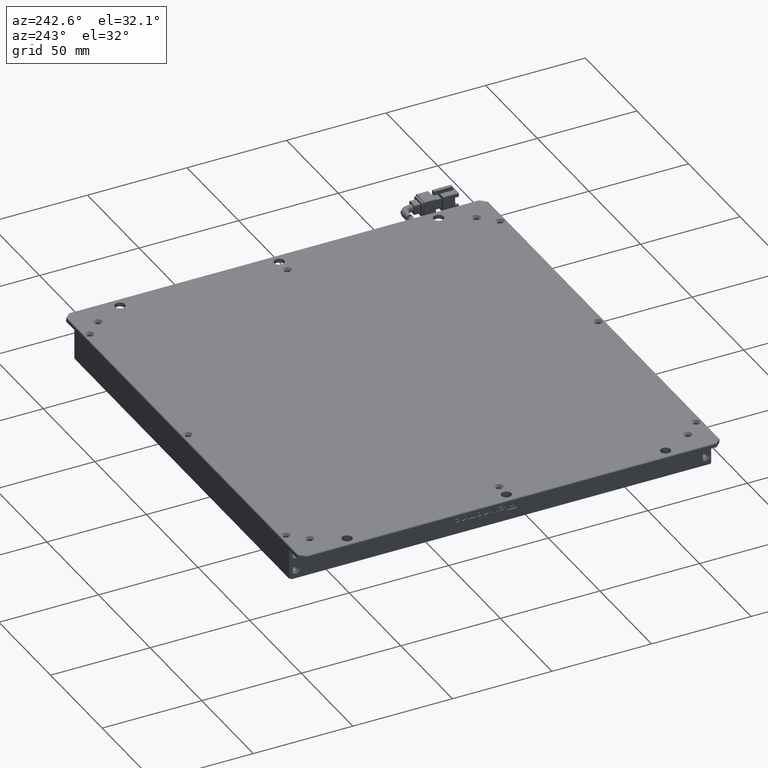
[diagram: clean part render]
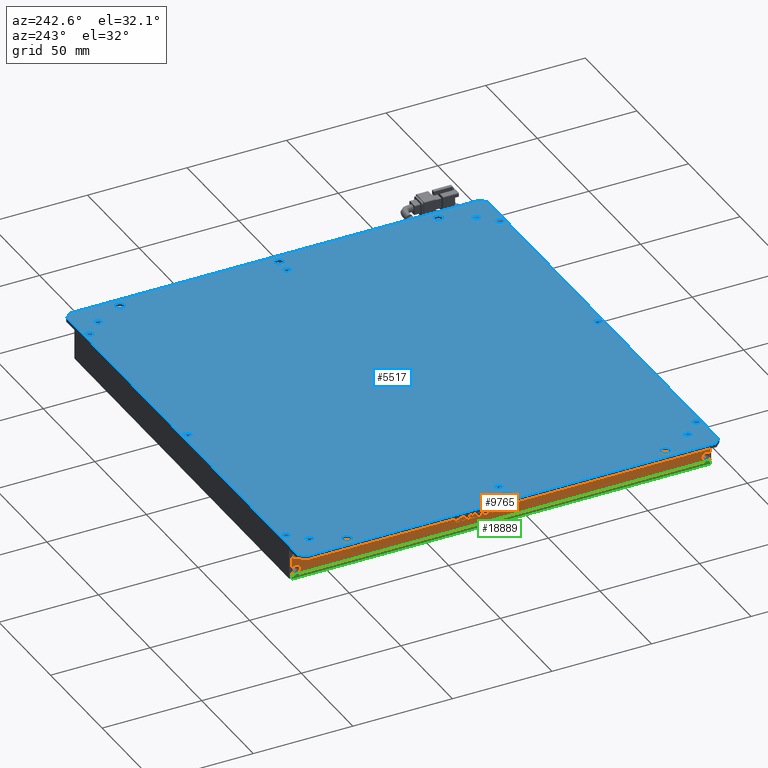
[diagram: same view with three faces highlighted in distinct colors, each labeled with its STEP entity id]
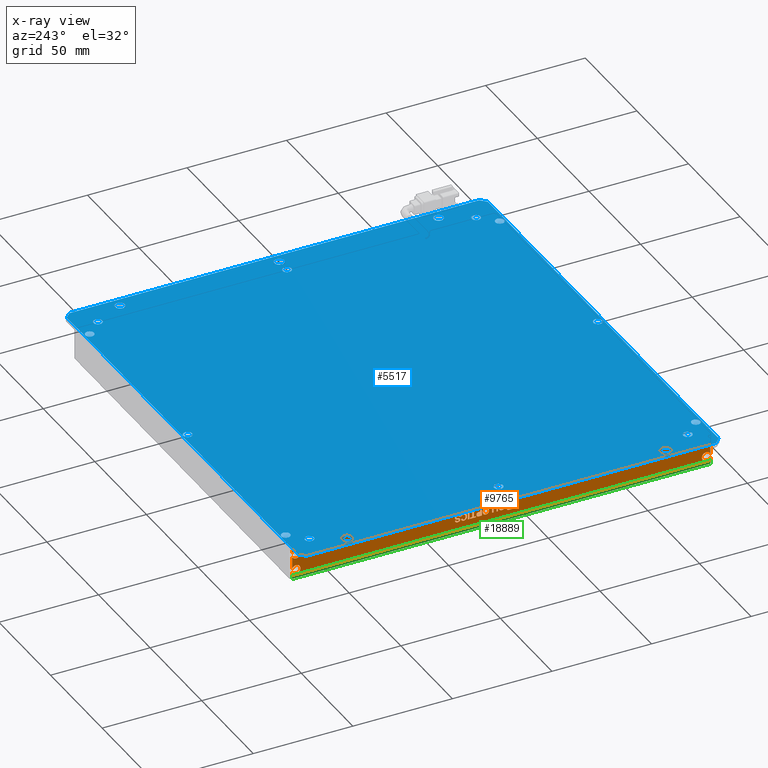
[diagram: x-ray of the same camera — body ghosted, the three highlighted faces saturated]
A machine part, auxiliary view with three faces highlighted in distinct colors.
The next image is the same camera in x-ray (body ghosted, the three faces saturated) — at least one of them is partly hidden behind the body in this view.
Their STEP definitions:

[orange] entity #9765 — the highlighted planar face has unit normal (-1, 0, -0).
#3 = CARTESIAN_POINT ( 'NONE',  ( -86.33424941752387800, -11.86597128088123800, -7.731634203403291200 ) ) ;
#34 = CARTESIAN_POINT ( 'NONE',  ( -86.33424941752387800, -24.08104699748492200, -7.308378389449764300 ) ) ;
#59 = EDGE_CURVE ( 'NONE', #12070, #5865, #339, .T. ) ;
#63 = CARTESIAN_POINT ( 'NONE',  ( -86.33424941752387800, -32.98039799802576500, -7.113029552240422300 ) ) ;
#81 = VECTOR ( 'NONE', #6471, 1000.000000000000000 ) ;
#102 = DIRECTION ( 'NONE',  ( 1.000000000000000000, -0.0000000000000000000, 1.130331070474788800E-016 ) ) ;
#115 = B_SPLINE_CURVE_WITH_KNOTS ( 'NONE', 3,
 ( #12355, #3, #1672, #14086 ),
 .UNSPECIFIED., .F., .F.,
 ( 4, 4 ),
 ( 10.00000000000000000, 11.00000000000000000 ),
 .UNSPECIFIED. ) ;
#145 = ORIENTED_EDGE ( 'NONE', *, *, #21681, .T. ) ;
#191 = CARTESIAN_POINT ( 'NONE',  ( -86.33424941752387800, -17.36858079954006900, -9.082796994100983000 ) ) ;
#201 = CARTESIAN_POINT ( 'NONE',  ( -86.33424941752387800, -33.78526549396954000, -8.643262110379978900 ) ) ;
#252 = CARTESIAN_POINT ( 'NONE',  ( -86.33424941752387800, -31.82619302236333400, -7.064192342938156300 ) ) ;
#254 = EDGE_CURVE ( 'NONE', #6722, #14795, #13152, .T. ) ;
#269 = CARTESIAN_POINT ( 'NONE',  ( -86.33424941752589600, -138.3787539827806700, -1.583484861012627100 ) ) ;
#279 = CARTESIAN_POINT ( 'NONE',  ( -86.33424941751933100, 69.62124601721924900, -10.50000000002366600 ) ) ;
#304 = CARTESIAN_POINT ( 'NONE',  ( -86.33424941752387800, -10.86868896611670200, -6.510703970845198400 ) ) ;
#339 = LINE ( 'NONE', #20354, #12593 ) ;
#376 = ORIENTED_EDGE ( 'NONE', *, *, #6894, .F. ) ;
#377 = CARTESIAN_POINT ( 'NONE',  ( -86.33424941752387800, -10.87891070759838800, -6.152564435961414400 ) ) ;
#396 = ORIENTED_EDGE ( 'NONE', *, *, #22057, .F. ) ;
#415 = ORIENTED_EDGE ( 'NONE', *, *, #13197, .T. ) ;
#471 = DIRECTION ( 'NONE',  ( -0.0000000000000000000, -0.0000000000000000000, -1.000000000000000000 ) ) ;
#525 = CARTESIAN_POINT ( 'NONE',  ( -86.33424941752387800, -12.85312649991865500, -7.585122575496326300 ) ) ;
#537 = EDGE_CURVE ( 'NONE', #1921, #2764, #18017, .T. ) ;
#543 = EDGE_CURVE ( 'NONE', #15073, #563, #7030, .T. ) ;
#563 = VERTEX_POINT ( 'NONE', #5972 ) ;
#582 = CARTESIAN_POINT ( 'NONE',  ( -86.33424941752387800, -27.33099291419660700, -7.308378389449764300 ) ) ;
#589 = VECTOR ( 'NONE', #8640, 1000.000000000000000 ) ;
#625 = AXIS2_PLACEMENT_3D ( 'NONE', #21869, #6607, #8077 ) ;
#656 = VERTEX_POINT ( 'NONE', #851 ) ;
#679 = CARTESIAN_POINT ( 'NONE',  ( -86.33424941752387800, -41.46783320607677600, -5.114693876153940400 ) ) ;
#696 = EDGE_CURVE ( 'NONE', #9206, #14518, #5761, .T. ) ;
#758 = VERTEX_POINT ( 'NONE', #15322 ) ;
#820 = CARTESIAN_POINT ( 'NONE',  ( -86.33424941752392100, -138.3787539827806400, -6.500000000023654900 ) ) ;
#851 = CARTESIAN_POINT ( 'NONE',  ( -86.33424941751933100, -134.1787539827732300, -10.50000000002365600 ) ) ;
#868 = EDGE_LOOP ( 'NONE', ( #13993, #18707, #8256, #7203, #19516, #9747, #15321 ) ) ;
#877 = CARTESIAN_POINT ( 'NONE',  ( -86.33424941752387800, -23.62542233550551900, -9.082796994100927900 ) ) ;
#887 = DIRECTION ( 'NONE',  ( -0.0000000000000000000, -0.0000000000000000000, -1.000000000000000000 ) ) ;
#908 = ORIENTED_EDGE ( 'NONE', *, *, #4714, .F. ) ;
#912 = CARTESIAN_POINT ( 'NONE',  ( -86.33424941752387800, -22.21311838742556700, -6.803727226659071400 ) ) ;
#942 = EDGE_CURVE ( 'NONE', #3444, #10025, #17711, .T. ) ;
#981 = EDGE_CURVE ( 'NONE', #2395, #20317, #20695, .T. ) ;
#1045 = CARTESIAN_POINT ( 'NONE',  ( -86.33424941752387800, -33.78526549396954000, -9.131634203403248100 ) ) ;
#1110 = EDGE_CURVE ( 'NONE', #563, #21329, #1769, .T. ) ;
#1126 = VECTOR ( 'NONE', #6574, 1000.000000000000000 ) ;
#1137 = VERTEX_POINT ( 'NONE', #14928 ) ;
#1139 = CARTESIAN_POINT ( 'NONE',  ( -86.33424941752387800, -34.68127685146033200, -7.324657459217186300 ) ) ;
#1147 = EDGE_CURVE ( 'NONE', #11998, #7754, #15773, .T. ) ;
#1164 = VERTEX_POINT ( 'NONE', #4787 ) ;
#1194 = DIRECTION ( 'NONE',  ( 1.130331070474788800E-016, -4.782939934548519700E-017, -1.000000000000000000 ) ) ;
#1239 = B_SPLINE_CURVE_WITH_KNOTS ( 'NONE', 3,
 ( #21262, #17705, #14056, #201 ),
 .UNSPECIFIED., .F., .F.,
 ( 4, 4 ),
 ( 2.000000000000000000, 3.000000000000000000 ),
 .UNSPECIFIED. ) ;
#1317 = EDGE_CURVE ( 'NONE', #5865, #1684, #14420, .T. ) ;
#1337 = DIRECTION ( 'NONE',  ( -0.0000000000000000000, -0.0000000000000000000, -1.000000000000000000 ) ) ;
#1366 = CARTESIAN_POINT ( 'NONE',  ( -86.33424941752387800, -10.91421357401273300, -8.040936528984698100 ) ) ;
#1367 = ORIENTED_EDGE ( 'NONE', *, *, #1646, .F. ) ;
#1420 = CARTESIAN_POINT ( 'NONE',  ( -86.33424941752387800, -33.95231525059455900, -7.601401645263693200 ) ) ;
#1422 = CARTESIAN_POINT ( 'NONE',  ( -86.33424941752387800, -34.33193937174156200, -6.043958432716388000 ) ) ;
#1437 = CARTESIAN_POINT ( 'NONE',  ( -86.33424941752387800, -14.46787771679264300, -5.989773738287028400 ) ) ;
#1458 = CARTESIAN_POINT ( 'NONE',  ( -86.33424941752387800, -32.53499507752827200, -8.789773738286943000 ) ) ;
#1464 = EDGE_CURVE ( 'NONE', #18731, #11766, #7321, .T. ) ;
#1508 = FACE_BOUND ( 'NONE', #17442, .T. ) ;
#1557 = ORIENTED_EDGE ( 'NONE', *, *, #5319, .F. ) ;
#1593 = CARTESIAN_POINT ( 'NONE',  ( -86.33424941752387800, -11.02570627276899800, -8.420702618762941700 ) ) ;
#1626 = LINE ( 'NONE', #14193, #6810 ) ;
#1641 = CARTESIAN_POINT ( 'NONE',  ( -86.33424941752387800, -20.67919464486184100, -8.594424901077712100 ) ) ;
#1642 = DIRECTION ( 'NONE',  ( -0.0000000000000000000, 1.000000000000000000, -0.0000000000000000000 ) ) ;
#1645 = CARTESIAN_POINT ( 'NONE',  ( -86.33424941752160500, -138.3787539827806700, -11.41651513902439100 ) ) ;
#1646 = EDGE_CURVE ( 'NONE', #6066, #6722, #19268, .T. ) ;
#1647 = CARTESIAN_POINT ( 'NONE',  ( -86.33424941752387800, -12.48362947449949100, -6.255586339693207000 ) ) ;
#1672 = CARTESIAN_POINT ( 'NONE',  ( -86.33424941752387800, -12.05848074545667900, -7.899772386204827700 ) ) ;
#1681 = ORIENTED_EDGE ( 'NONE', *, *, #10625, .F. ) ;
#1684 = VERTEX_POINT ( 'NONE', #9682 ) ;
#1746 = CARTESIAN_POINT ( 'NONE',  ( -86.33424941752387800, -24.15203131333115700, -8.458608243424880200 ) ) ;
#1769 = B_SPLINE_CURVE_WITH_KNOTS ( 'NONE', 3,
 ( #2199, #525, #12736, #17914 ),
 .UNSPECIFIED., .F., .F.,
 ( 4, 4 ),
 ( 4.000000000000000000, 5.000000000000000000 ),
 .UNSPECIFIED. ) ;
#1785 = CARTESIAN_POINT ( 'NONE',  ( -86.33424941752387800, -32.29696100505680100, -6.299076063868323400 ) ) ;
#1802 = CARTESIAN_POINT ( 'NONE',  ( -86.33424941752589600, -138.3787539827806700, -9.583484861012674800 ) ) ;
#1805 = CARTESIAN_POINT ( 'NONE',  ( -86.33424941752387800, -20.67919464486184100, -8.594424901077712100 ) ) ;
#1823 = CARTESIAN_POINT ( 'NONE',  ( -86.33424941752387800, -13.22252887958347300, -7.975820249914955100 ) ) ;
#1828 = CARTESIAN_POINT ( 'NONE',  ( -86.33424941752387800, -12.03803726249308400, -8.171169087124241100 ) ) ;
#1890 = CARTESIAN_POINT ( 'NONE',  ( -86.33424941752387800, -11.07624710565130500, -6.971865409460607800 ) ) ;
#1898 = DIRECTION ( 'NONE',  ( -0.0000000000000000000, 1.000000000000000000, -0.0000000000000000000 ) ) ;
#1914 = LINE ( 'NONE', #19598, #12542 ) ;
#1915 = ORIENTED_EDGE ( 'NONE', *, *, #18436, .F. ) ;
#1918 = CARTESIAN_POINT ( 'NONE',  ( -86.33424941752387800, -31.09723142149789500, -9.082796994100927900 ) ) ;
#1921 = VERTEX_POINT ( 'NONE', #8575 ) ;
#1944 = CARTESIAN_POINT ( 'NONE',  ( -86.33424941752387800, -25.70601995584076200, -5.517680715031182200 ) ) ;
#1950 = CARTESIAN_POINT ( 'NONE',  ( -86.33424941752387800, -11.46098209753904100, -7.666517924333547300 ) ) ;
#1957 = CARTESIAN_POINT ( 'NONE',  ( -86.33424941752387800, -22.21311838742556700, -6.803727226659071400 ) ) ;
#2001 = VERTEX_POINT ( 'NONE', #12625 ) ;
#2002 = ORIENTED_EDGE ( 'NONE', *, *, #2897, .T. ) ;
#2006 = LINE ( 'NONE', #5204, #5247 ) ;
#2020 = EDGE_CURVE ( 'NONE', #10542, #12850, #21649, .T. ) ;
#2028 = CARTESIAN_POINT ( 'NONE',  ( -86.33424941752387800, -17.36858079954006900, -5.582796994100978500 ) ) ;
#2036 = LINE ( 'NONE', #20756, #3377 ) ;
#2081 = DIRECTION ( 'NONE',  ( -0.0000000000000000000, -0.0000000000000000000, 1.000000000000000000 ) ) ;
#2103 = DIRECTION ( 'NONE',  ( -0.0000000000000000000, -1.000000000000000000, -0.0000000000000000000 ) ) ;
#2199 = CARTESIAN_POINT ( 'NONE',  ( -86.33424941752387800, -12.78214218407231000, -8.171169087124241100 ) ) ;
#2202 = CARTESIAN_POINT ( 'NONE',  ( -86.33424941752387800, -29.83673926357460700, -5.967910569006261500 ) ) ;
#2241 = EDGE_LOOP ( 'NONE', ( #21302, #17518, #7350, #3205, #5608, #7174, #2410, #17234 ) ) ;
#2262 = ORIENTED_EDGE ( 'NONE', *, *, #6929, .F. ) ;
#2386 = CARTESIAN_POINT ( 'NONE',  ( -86.33424941752387800, -14.61978415270415300, -8.626983040612556100 ) ) ;
#2395 = VERTEX_POINT ( 'NONE', #16925 ) ;
#2410 = ORIENTED_EDGE ( 'NONE', *, *, #7435, .F. ) ;
#2431 = CARTESIAN_POINT ( 'NONE',  ( -86.33424941752387800, -26.73869978277437900, -9.088144479228020600 ) ) ;
#2541 = VERTEX_POINT ( 'NONE', #1785 ) ;
#2580 = EDGE_CURVE ( 'NONE', #1684, #17451, #11036, .T. ) ;
#2647 = CARTESIAN_POINT ( 'NONE',  ( -86.33424941752387800, -11.46098209753904100, -5.517680715031235500 ) ) ;
#2719 = CARTESIAN_POINT ( 'NONE',  ( -86.33424941752387800, -33.09189069678170400, -6.157911921088453000 ) ) ;
#2720 = CARTESIAN_POINT ( 'NONE',  ( -86.33424941752387800, -14.46787771679264300, -5.989773738287028400 ) ) ;
#2738 = B_SPLINE_CURVE_WITH_KNOTS ( 'NONE', 3,
 ( #12185, #5144, #10123, #10285 ),
 .UNSPECIFIED., .F., .F.,
 ( 4, 4 ),
 ( 9.000000000000000000, 10.00000000000000000 ),
 .UNSPECIFIED. ) ;
#2747 = CARTESIAN_POINT ( 'NONE',  ( -86.33424941752387800, -11.55203131333143500, -9.131634203403304900 ) ) ;
#2751 = ORIENTED_EDGE ( 'NONE', *, *, #1317, .T. ) ;
#2764 = VERTEX_POINT ( 'NONE', #18131 ) ;
#2808 = B_SPLINE_CURVE_WITH_KNOTS ( 'NONE', 3,
 ( #2856, #18426, #18346, #11647 ),
 .UNSPECIFIED., .F., .F.,
 ( 4, 4 ),
 ( 13.00000000000000000, 14.00000000000000000 ),
 .UNSPECIFIED. ) ;
#2829 = EDGE_CURVE ( 'NONE', #4949, #21400, #5774, .T. ) ;
#2834 = EDGE_CURVE ( 'NONE', #22390, #5869, #3358, .T. ) ;
#2856 = CARTESIAN_POINT ( 'NONE',  ( -86.33424941752387800, -12.85814272490498700, -6.168843505728892400 ) ) ;
#2876 = CARTESIAN_POINT ( 'NONE',  ( -86.33424941752387800, -138.3787539827806400, -13.00000000002366300 ) ) ;
#2895 = VERTEX_POINT ( 'NONE', #1139 ) ;
#2897 = EDGE_CURVE ( 'NONE', #4565, #8493, #18582, .T. ) ;
#2959 = EDGE_LOOP ( 'NONE', ( #16106, #9819, #11813, #6635, #14020, #11536, #8907, #8488, #376, #19662, #17285, #20563, #13227, #5674 ) ) ;
#3007 = EDGE_CURVE ( 'NONE', #14518, #11998, #5411, .T. ) ;
#3012 = VECTOR ( 'NONE', #1898, 1000.000000000000000 ) ;
#3021 = DIRECTION ( 'NONE',  ( -0.0000000000000000000, 1.000000000000000000, -0.0000000000000000000 ) ) ;
#3168 = LINE ( 'NONE', #11699, #10834 ) ;
#3195 = LINE ( 'NONE', #8873, #21165 ) ;
#3205 = ORIENTED_EDGE ( 'NONE', *, *, #1147, .F. ) ;
#3207 = VERTEX_POINT ( 'NONE', #4001 ) ;
#3295 = DIRECTION ( 'NONE',  ( -0.0000000000000000000, -1.000000000000000000, -0.0000000000000000000 ) ) ;
#3303 = CARTESIAN_POINT ( 'NONE',  ( -86.33424941752387800, -14.63492747341788000, -5.517680715031179500 ) ) ;
#3306 = CARTESIAN_POINT ( 'NONE',  ( -86.33424941752387800, -19.60099021003214400, -8.594424901077712100 ) ) ;
#3336 = CARTESIAN_POINT ( 'NONE',  ( -86.33424941752387800, -10.21563326032970300, -8.040936528984698100 ) ) ;
#3355 = B_SPLINE_CURVE_WITH_KNOTS ( 'NONE', 3,
 ( #4000, #4371, #18561, #16564 ),
 .UNSPECIFIED., .F., .F.,
 ( 4, 4 ),
 ( 8.000000000000000000, 9.000000000000000000 ),
 .UNSPECIFIED. ) ;
#3358 = B_SPLINE_CURVE_WITH_KNOTS ( 'NONE', 3,
 ( #5883, #2431, #7795, #19801 ),
 .UNSPECIFIED., .F., .F.,
 ( 4, 4 ),
 ( 2.000000000000000000, 3.000000000000000000 ),
 .UNSPECIFIED. ) ;
#3361 = VERTEX_POINT ( 'NONE', #16419 ) ;
#3377 = VECTOR ( 'NONE', #8494, 1000.000000000000000 ) ;
#3405 = EDGE_CURVE ( 'NONE', #656, #4565, #21247, .T. ) ;
#3421 = VECTOR ( 'NONE', #471, 1000.000000000000000 ) ;
#3442 = EDGE_CURVE ( 'NONE', #5942, #2541, #19425, .T. ) ;
#3444 = VERTEX_POINT ( 'NONE', #4679 ) ;
#3457 = CARTESIAN_POINT ( 'NONE',  ( -86.33424941752387800, -13.29852942041615000, -6.103727226659093400 ) ) ;
#3466 = CARTESIAN_POINT ( 'NONE',  ( -86.33424941752387800, -12.05318058320703400, -5.984189638773794500 ) ) ;
#3533 = DIRECTION ( 'NONE',  ( 1.000000000000000000, -0.0000000000000000000, 1.130331070474788800E-016 ) ) ;
#3596 = EDGE_CURVE ( 'NONE', #21017, #10106, #8656, .T. ) ;
#3628 = DIRECTION ( 'NONE',  ( 0.0000000000000000000, 1.000000000000000000, -7.885106708958201300E-016 ) ) ;
#3630 = LINE ( 'NONE', #11924, #11830 ) ;
#3664 = CARTESIAN_POINT ( 'NONE',  ( -86.33424941752387800, -11.46098209753904100, -7.666517924333547300 ) ) ;
#3672 = CARTESIAN_POINT ( 'NONE',  ( -86.33424941752387800, -11.53688799261737300, -8.626983040612611100 ) ) ;
#3800 = CARTESIAN_POINT ( 'NONE',  ( -86.33424941752387800, -10.21563326032970300, -8.040936528984698100 ) ) ;
#3831 = VERTEX_POINT ( 'NONE', #21261 ) ;
#3896 = CARTESIAN_POINT ( 'NONE',  ( -86.33424941752387800, -14.46787771679264300, -5.989773738287028400 ) ) ;
#3955 = CARTESIAN_POINT ( 'NONE',  ( -86.33424941752160500, 71.62124601721927800, -1.583484861002810300 ) ) ;
#4000 = CARTESIAN_POINT ( 'NONE',  ( -86.33424941752387800, -14.66530876060018200, -9.131634203403304900 ) ) ;
#4001 = CARTESIAN_POINT ( 'NONE',  ( -86.33424941752387800, -18.87202860916703500, -5.582796994100978500 ) ) ;
#4029 = ORIENTED_EDGE ( 'NONE', *, *, #20098, .F. ) ;
#4031 = CARTESIAN_POINT ( 'NONE',  ( -86.33424941752387800, -10.33715840905874500, -8.746284014111825700 ) ) ;
#4057 = AXIS2_PLACEMENT_3D ( 'NONE', #4551, #9929, #22051 ) ;
#4154 = ORIENTED_EDGE ( 'NONE', *, *, #1110, .F. ) ;
#4160 = VERTEX_POINT ( 'NONE', #3664 ) ;
#4162 = EDGE_CURVE ( 'NONE', #17758, #20685, #15187, .T. ) ;
#4177 = EDGE_CURVE ( 'NONE', #16183, #18456, #7303, .T. ) ;
#4184 = CARTESIAN_POINT ( 'NONE',  ( -86.33424941752387800, -21.02853212458061100, -7.943262110380055100 ) ) ;
#4217 = FACE_BOUND ( 'NONE', #22148, .T. ) ;
#4230 = EDGE_CURVE ( 'NONE', #19349, #6789, #5644, .T. ) ;
#4284 = CARTESIAN_POINT ( 'NONE',  ( -86.33424941752387800, -31.85657430954563900, -6.000468708541160500 ) ) ;
#4371 = CARTESIAN_POINT ( 'NONE',  ( -86.33424941752387800, -15.65766949613295400, -9.066517924333505000 ) ) ;
#4375 = CARTESIAN_POINT ( 'NONE',  ( -86.33424941752387800, 71.62124601721927800, -2.366336293579962600E-011 ) ) ;
#4386 = CARTESIAN_POINT ( 'NONE',  ( -86.33424941752387800, -33.72450291960505100, -5.989773738286972500 ) ) ;
#4470 = EDGE_LOOP ( 'NONE', ( #9334, #18155, #15831, #11160, #21528, #145, #17951, #2002, #415, #19875, #17789, #14022, #15912, #2751, #4692, #14815 ) ) ;
#4501 = CARTESIAN_POINT ( 'NONE',  ( -86.33424941752387800, -15.18690151343959900, -8.605119871331901000 ) ) ;
#4551 = CARTESIAN_POINT ( 'NONE',  ( -86.33424941751933100, 69.62124601721924900, -2.500000000023665500 ) ) ;
#4565 = VERTEX_POINT ( 'NONE', #1802 ) ;
#4588 = CARTESIAN_POINT ( 'NONE',  ( -86.33424941752387800, -41.46783320607677600, -9.497059036455434400 ) ) ;
#4607 = CARTESIAN_POINT ( 'NONE',  ( -86.33424941752387800, -34.82816706238489200, -9.077212894587637100 ) ) ;
#4679 = CARTESIAN_POINT ( 'NONE',  ( -86.33424941752387800, -23.62542233550551900, -5.582796994100923400 ) ) ;
#4692 = ORIENTED_EDGE ( 'NONE', *, *, #2580, .T. ) ;
#4697 = CARTESIAN_POINT ( 'NONE',  ( -86.33424941752387800, -32.98039799802576500, -6.526983040612564400 ) ) ;
#4709 = CARTESIAN_POINT ( 'NONE',  ( -86.33424941752387800, -138.3787539827806700, -6.500000000023654900 ) ) ;
#4714 = EDGE_CURVE ( 'NONE', #14122, #8762, #10398, .T. ) ;
#4787 = CARTESIAN_POINT ( 'NONE',  ( -86.33424941752387800, -32.98039799802576500, -6.526983040612564400 ) ) ;
#4790 = LINE ( 'NONE', #9753, #6165 ) ;
#4843 = CARTESIAN_POINT ( 'NONE',  ( -86.33424941752387800, -34.81292909591665800, -5.561170439206351900 ) ) ;
#4856 = CARTESIAN_POINT ( 'NONE',  ( -86.33424941752387800, -37.19965670906633200, -10.01095034606709300 ) ) ;
#4873 = VERTEX_POINT ( 'NONE', #8326 ) ;
#4944 = EDGE_CURVE ( 'NONE', #16441, #10777, #12683, .T. ) ;
#4949 = VERTEX_POINT ( 'NONE', #20593 ) ;
#4982 = LINE ( 'NONE', #17958, #9656 ) ;
#5028 = FACE_BOUND ( 'NONE', #2959, .T. ) ;
#5040 = CARTESIAN_POINT ( 'NONE',  ( -86.33424941752387800, -33.37875398278080000, -6.500000000023660200 ) ) ;
#5072 = CARTESIAN_POINT ( 'NONE',  ( -86.33424941752387800, -33.78526549396954000, -8.643262110379978900 ) ) ;
#5144 = CARTESIAN_POINT ( 'NONE',  ( -86.33424941752387800, -12.04825900397499300, -8.474887313192358100 ) ) ;
#5204 = CARTESIAN_POINT ( 'NONE',  ( -86.33424941752387800, -37.19965670906633200, -4.791154878994073700 ) ) ;
#5205 = EDGE_CURVE ( 'NONE', #9183, #17758, #6500, .T. ) ;
#5230 = LINE ( 'NONE', #3336, #589 ) ;
#5247 = VECTOR ( 'NONE', #19289, 1000.000000000000000 ) ;
#5287 = CARTESIAN_POINT ( 'NONE',  ( -86.33424941752387800, -34.68127685146033200, -7.324657459217186300 ) ) ;
#5290 = LINE ( 'NONE', #17170, #20261 ) ;
#5319 = EDGE_CURVE ( 'NONE', #20685, #4873, #18069, .T. ) ;
#5388 = CARTESIAN_POINT ( 'NONE',  ( -86.33424941752387800, -22.91169870110854100, -6.803727226659071400 ) ) ;
#5411 = B_SPLINE_CURVE_WITH_KNOTS ( 'NONE', 3,
 ( #15526, #11817, #17276, #4856 ),
 .UNSPECIFIED., .F., .F.,
 ( 4, 4 ),
 ( 3.000000000000000000, 4.000000000000000000 ),
 .UNSPECIFIED. ) ;
#5489 = ORIENTED_EDGE ( 'NONE', *, *, #10907, .F. ) ;
#5571 = CIRCLE ( 'NONE', #7302, 2.200000000024779500 ) ;
#5581 = CARTESIAN_POINT ( 'NONE',  ( -86.33424941752387800, -24.13187176763094800, -6.179538475983023600 ) ) ;
#5608 = ORIENTED_EDGE ( 'NONE', *, *, #3007, .F. ) ;
#5632 = ORIENTED_EDGE ( 'NONE', *, *, #4162, .F. ) ;
#5642 = DIRECTION ( 'NONE',  ( -0.0000000000000000000, -0.0000000000000000000, 1.000000000000000000 ) ) ;
#5644 = LINE ( 'NONE', #8887, #19825 ) ;
#5668 = CARTESIAN_POINT ( 'NONE',  ( -86.33424941752387800, -30.36826982063261900, -5.517680715031124400 ) ) ;
#5674 = ORIENTED_EDGE ( 'NONE', *, *, #19775, .F. ) ;
#5705 = EDGE_CURVE ( 'NONE', #16753, #2001, #1626, .T. ) ;
#5721 = CARTESIAN_POINT ( 'NONE',  ( -86.33424941752387800, -11.55203131333143500, -9.131634203403304900 ) ) ;
#5761 = LINE ( 'NONE', #6421, #1126 ) ;
#5764 = CARTESIAN_POINT ( 'NONE',  ( -86.33424941751933100, 69.62124601721924900, -10.50000000002366600 ) ) ;
#5774 = LINE ( 'NONE', #19943, #18056 ) ;
#5797 = CARTESIAN_POINT ( 'NONE',  ( -86.33424941752387800, -41.14434178376203000, -4.791154878994073700 ) ) ;
#5865 = VERTEX_POINT ( 'NONE', #3955 ) ;
#5869 = VERTEX_POINT ( 'NONE', #21463 ) ;
#5883 = CARTESIAN_POINT ( 'NONE',  ( -86.33424941752387800, -25.70601995584081900, -9.131634203403248100 ) ) ;
#5905 = ORIENTED_EDGE ( 'NONE', *, *, #15744, .F. ) ;
#5942 = VERTEX_POINT ( 'NONE', #8022 ) ;
#5971 = ORIENTED_EDGE ( 'NONE', *, *, #7992, .F. ) ;
#5972 = CARTESIAN_POINT ( 'NONE',  ( -86.33424941752387800, -12.78214218407231000, -8.171169087124241100 ) ) ;
#6066 = VERTEX_POINT ( 'NONE', #10235 ) ;
#6071 = CARTESIAN_POINT ( 'NONE',  ( -86.33424941752387800, -32.31219897152504200, -8.106052808054386100 ) ) ;
#6094 = EDGE_CURVE ( 'NONE', #21841, #12221, #9350, .T. ) ;
#6119 = B_SPLINE_CURVE_WITH_KNOTS ( 'NONE', 3,
 ( #17415, #1890, #15728, #7075 ),
 .UNSPECIFIED., .F., .F.,
 ( 4, 4 ),
 ( 3.000000000000000000, 4.000000000000000000 ),
 .UNSPECIFIED. ) ;
#6156 = CARTESIAN_POINT ( 'NONE',  ( -86.33424941752387800, -32.29696100505680100, -7.601401645263693200 ) ) ;
#6165 = VECTOR ( 'NONE', #20056, 1000.000000000000000 ) ;
#6202 = DIRECTION ( 'NONE',  ( -0.0000000000000000000, -0.0000000000000000000, 1.000000000000000000 ) ) ;
#6217 = DIRECTION ( 'NONE',  ( -1.130331070474788800E-016, 4.782939934548519700E-017, 1.000000000000000000 ) ) ;
#6218 = EDGE_CURVE ( 'NONE', #4160, #12418, #115, .T. ) ;
#6237 = VECTOR ( 'NONE', #2103, 1000.000000000000000 ) ;
#6257 = B_SPLINE_CURVE_WITH_KNOTS ( 'NONE', 3,
 ( #5668, #14514, #18011, #21341 ),
 .UNSPECIFIED., .F., .F.,
 ( 4, 4 ),
 ( 8.000000000000000000, 9.000000000000000000 ),
 .UNSPECIFIED. ) ;
#6284 = CARTESIAN_POINT ( 'NONE',  ( -86.33424941752387800, -40.51612874786769700, -10.01095034606709300 ) ) ;
#6286 = CARTESIAN_POINT ( 'NONE',  ( -86.33424941752387800, -13.22252887958347300, -7.975820249914955100 ) ) ;
#6312 = CARTESIAN_POINT ( 'NONE',  ( -86.33424941752387800, -10.11455159456442500, -5.865125279660775300 ) ) ;
#6328 = CARTESIAN_POINT ( 'NONE',  ( -86.33424941752387800, -33.95231525059455900, -7.113029552240422300 ) ) ;
#6331 = B_SPLINE_CURVE_WITH_KNOTS ( 'NONE', 3,
 ( #21520, #679, #5797, #19718 ),
 .UNSPECIFIED., .F., .F.,
 ( 4, 4 ),
 ( 7.000000000000000000, 8.000000000000000000 ),
 .UNSPECIFIED. ) ;
#6379 = ORIENTED_EDGE ( 'NONE', *, *, #6218, .F. ) ;
#6410 = B_SPLINE_CURVE_WITH_KNOTS ( 'NONE', 3,
 ( #10726, #19595, #19375, #1950 ),
 .UNSPECIFIED., .F., .F.,
 ( 4, 4 ),
 ( 11.00000000000000000, 12.00000000000000000 ),
 .UNSPECIFIED. ) ;
#6421 = CARTESIAN_POINT ( 'NONE',  ( -86.33424941752387800, -36.24803787086694500, -9.059293430489178800 ) ) ;
#6471 = DIRECTION ( 'NONE',  ( -1.130331070474788800E-016, 4.782939934548519700E-017, 1.000000000000000000 ) ) ;
#6475 = CARTESIAN_POINT ( 'NONE',  ( -86.33424941752387800, -40.51612874786769700, -4.791154878994073700 ) ) ;
#6478 = VECTOR ( 'NONE', #2081, 1000.000000000000000 ) ;
#6481 = EDGE_CURVE ( 'NONE', #11478, #5942, #7728, .T. ) ;
#6500 = LINE ( 'NONE', #14369, #6237 ) ;
#6529 = LINE ( 'NONE', #1420, #8195 ) ;
#6565 = B_SPLINE_CURVE_WITH_KNOTS ( 'NONE', 3,
 ( #11865, #1422, #22467, #5287 ),
 .UNSPECIFIED., .F., .F.,
 ( 4, 4 ),
 ( 3.000000000000000000, 4.000000000000000000 ),
 .UNSPECIFIED. ) ;
#6574 = DIRECTION ( 'NONE',  ( -0.0000000000000000000, -0.0000000000000000000, -1.000000000000000000 ) ) ;
#6589 = EDGE_CURVE ( 'NONE', #21329, #14122, #6119, .T. ) ;
#6607 = DIRECTION ( 'NONE',  ( 1.000000000000000000, -0.0000000000000000000, 1.130331070474788800E-016 ) ) ;
#6617 = ORIENTED_EDGE ( 'NONE', *, *, #21273, .F. ) ;
#6635 = ORIENTED_EDGE ( 'NONE', *, *, #8297, .F. ) ;
#6642 = CARTESIAN_POINT ( 'NONE',  ( -86.33424941752387800, -41.46783320607677600, -5.742821307906941000 ) ) ;
#6647 = ORIENTED_EDGE ( 'NONE', *, *, #20666, .F. ) ;
#6693 = FACE_BOUND ( 'NONE', #9618, .T. ) ;
#6704 = CARTESIAN_POINT ( 'NONE',  ( -86.33424941752387800, -32.98039799802576500, -6.526983040612564400 ) ) ;
#6722 = VERTEX_POINT ( 'NONE', #17713 ) ;
#6725 = B_SPLINE_CURVE_WITH_KNOTS ( 'NONE', 3,
 ( #17772, #7349, #12614, #3896 ),
 .UNSPECIFIED., .F., .F.,
 ( 4, 4 ),
 ( 4.000000000000000000, 5.000000000000000000 ),
 .UNSPECIFIED. ) ;
#6774 = CARTESIAN_POINT ( 'NONE',  ( -86.33424941752387800, -13.86564678115170900, -9.120702618762921400 ) ) ;
#6789 = VERTEX_POINT ( 'NONE', #17790 ) ;
#6810 = VECTOR ( 'NONE', #5642, 1000.000000000000000 ) ;
#6883 = DIRECTION ( 'NONE',  ( 0.0000000000000000000, 1.000000000000000000, -1.774149009501751500E-015 ) ) ;
#6894 = EDGE_CURVE ( 'NONE', #17795, #8967, #3168, .T. ) ;
#6907 = CARTESIAN_POINT ( 'NONE',  ( -86.33424941752387800, -14.61978415270415300, -8.626983040612556100 ) ) ;
#6929 = EDGE_CURVE ( 'NONE', #13747, #10150, #16524, .T. ) ;
#6930 = CARTESIAN_POINT ( 'NONE',  ( -86.33424941752387800, -17.79382417433739100, -8.594424901077712100 ) ) ;
#6949 = ORIENTED_EDGE ( 'NONE', *, *, #18334, .F. ) ;
#6977 = FACE_BOUND ( 'NONE', #9613, .T. ) ;
#6991 = ORIENTED_EDGE ( 'NONE', *, *, #5205, .F. ) ;
#7007 = ORIENTED_EDGE ( 'NONE', *, *, #981, .F. ) ;
#7022 = VECTOR ( 'NONE', #21216, 1000.000000000000000 ) ;
#7030 = B_SPLINE_CURVE_WITH_KNOTS ( 'NONE', 3,
 ( #2747, #11240, #13052, #14796 ),
 .UNSPECIFIED., .F., .F.,
 ( 4, 4 ),
 ( 5.000000000000000000, 6.000000000000000000 ),
 .UNSPECIFIED. ) ;
#7058 = VECTOR ( 'NONE', #8701, 1000.000000000000000 ) ;
#7075 = CARTESIAN_POINT ( 'NONE',  ( -86.33424941752387800, -10.86868896611670200, -6.510703970845198400 ) ) ;
#7093 = DIRECTION ( 'NONE',  ( -0.0000000000000000000, -0.0000000000000000000, 1.000000000000000000 ) ) ;
#7099 = ORIENTED_EDGE ( 'NONE', *, *, #15250, .F. ) ;
#7119 = DIRECTION ( 'NONE',  ( 1.000000000000000000, -0.0000000000000000000, 1.130331070474788800E-016 ) ) ;
#7135 = VERTEX_POINT ( 'NONE', #1437 ) ;
#7155 = VERTEX_POINT ( 'NONE', #15989 ) ;
#7174 = ORIENTED_EDGE ( 'NONE', *, *, #696, .F. ) ;
#7203 = ORIENTED_EDGE ( 'NONE', *, *, #942, .F. ) ;
#7253 = EDGE_CURVE ( 'NONE', #758, #20925, #18128, .T. ) ;
#7255 = CARTESIAN_POINT ( 'NONE',  ( -86.33424941752387800, -14.63492747341788000, -5.517680715031179500 ) ) ;
#7268 = DIRECTION ( 'NONE',  ( 0.0000000000000000000, 1.000000000000000000, 0.0000000000000000000 ) ) ;
#7302 = AXIS2_PLACEMENT_3D ( 'NONE', #5764, #21434, #21492 ) ;
#7303 = CIRCLE ( 'NONE', #10606, 2.200000000007612800 ) ;
#7321 = LINE ( 'NONE', #6642, #8699 ) ;
#7325 = EDGE_CURVE ( 'NONE', #3361, #10983, #20319, .T. ) ;
#7331 = CARTESIAN_POINT ( 'NONE',  ( -86.33424941752387800, -25.70601995584076200, -5.517680715031182200 ) ) ;
#7349 = CARTESIAN_POINT ( 'NONE',  ( -86.33424941752387800, -13.64285067514847700, -6.228375685285401500 ) ) ;
#7350 = ORIENTED_EDGE ( 'NONE', *, *, #21908, .F. ) ;
#7353 = DIRECTION ( 'NONE',  ( -0.0000000000000000000, -0.0000000000000000000, 1.000000000000000000 ) ) ;
#7411 = CARTESIAN_POINT ( 'NONE',  ( -86.33424941752387800, -11.56726927979973000, -5.973494668519550500 ) ) ;
#7435 = EDGE_CURVE ( 'NONE', #1137, #9206, #11914, .T. ) ;
#7456 = VECTOR ( 'NONE', #6217, 1000.000000000000000 ) ;
#7484 = CARTESIAN_POINT ( 'NONE',  ( -86.33424941752387800, -40.51612874786769700, -10.01095034606709300 ) ) ;
#7485 = CARTESIAN_POINT ( 'NONE',  ( -86.33424941752387800, -13.93634715973474100, -7.975820249914955100 ) ) ;
#7574 = EDGE_CURVE ( 'NONE', #17451, #13574, #2036, .T. ) ;
#7628 = B_SPLINE_CURVE_WITH_KNOTS ( 'NONE', 3,
 ( #6284, #11630, #4588, #9584 ),
 .UNSPECIFIED., .F., .F.,
 ( 4, 4 ),
 ( 1.000000000000000000, 2.000000000000000000 ),
 .UNSPECIFIED. ) ;
#7631 = CARTESIAN_POINT ( 'NONE',  ( -86.33424941752387800, -30.35312649991867000, -5.989773738286972500 ) ) ;
#7728 = B_SPLINE_CURVE_WITH_KNOTS ( 'NONE', 3,
 ( #20146, #21959, #4843, #11723 ),
 .UNSPECIFIED., .F., .F.,
 ( 4, 4 ),
 ( 11.00000000000000000, 12.00000000000000000 ),
 .UNSPECIFIED. ) ;
#7745 = CARTESIAN_POINT ( 'NONE',  ( -86.33424941752387800, -15.48541422301219600, -7.292099319682342300 ) ) ;
#7754 = VERTEX_POINT ( 'NONE', #10676 ) ;
#7795 = CARTESIAN_POINT ( 'NONE',  ( -86.33424941752387800, -27.28045208131402100, -8.480471412705592000 ) ) ;
#7803 = VERTEX_POINT ( 'NONE', #15896 ) ;
#7815 = CARTESIAN_POINT ( 'NONE',  ( -86.33424941752387800, -17.79382417433739100, -9.082796994100983000 ) ) ;
#7875 = VECTOR ( 'NONE', #10595, 1000.000000000000000 ) ;
#7894 = VERTEX_POINT ( 'NONE', #21290 ) ;
#7992 = EDGE_CURVE ( 'NONE', #5869, #8836, #15229, .T. ) ;
#8022 = CARTESIAN_POINT ( 'NONE',  ( -86.33424941752387800, -33.73964624031899700, -5.517680715031124400 ) ) ;
#8028 = B_SPLINE_CURVE_WITH_KNOTS ( 'NONE', 3,
 ( #7745, #11250, #4501, #14803 ),
 .UNSPECIFIED., .F., .F.,
 ( 4, 4 ),
 ( 2.000000000000000000, 3.000000000000000000 ),
 .UNSPECIFIED. ) ;
#8077 = DIRECTION ( 'NONE',  ( 0.0000000000000000000, 1.000000000000000000, 0.0000000000000000000 ) ) ;
#8096 = CARTESIAN_POINT ( 'NONE',  ( -86.33424941752387800, -33.72450291960505100, -5.989773738286972500 ) ) ;
#8146 = CARTESIAN_POINT ( 'NONE',  ( -86.33424941752160500, 71.62124601721927800, -11.41651513904451900 ) ) ;
#8190 = ORIENTED_EDGE ( 'NONE', *, *, #254, .F. ) ;
#8191 = B_SPLINE_CURVE_WITH_KNOTS ( 'NONE', 3,
 ( #4697, #2719, #20374, #4386 ),
 .UNSPECIFIED., .F., .F.,
 ( 4, 4 ),
 ( 4.000000000000000000, 5.000000000000000000 ),
 .UNSPECIFIED. ) ;
#8195 = VECTOR ( 'NONE', #17243, 1000.000000000000000 ) ;
#8256 = ORIENTED_EDGE ( 'NONE', *, *, #20977, .F. ) ;
#8297 = EDGE_CURVE ( 'NONE', #2895, #16441, #1239, .T. ) ;
#8326 = CARTESIAN_POINT ( 'NONE',  ( -86.33424941752387800, -30.36826982063261900, -5.517680715031124400 ) ) ;
#8329 = ORIENTED_EDGE ( 'NONE', *, *, #19845, .F. ) ;
#8374 = DIRECTION ( 'NONE',  ( -0.0000000000000000000, -0.0000000000000000000, -1.000000000000000000 ) ) ;
#8393 = VERTEX_POINT ( 'NONE', #14510 ) ;
#8395 = CARTESIAN_POINT ( 'NONE',  ( -86.33424941752387800, -13.59230984226600500, -5.713029552240521400 ) ) ;
#8426 = LINE ( 'NONE', #6156, #10033 ) ;
#8488 = ORIENTED_EDGE ( 'NONE', *, *, #19523, .F. ) ;
#8493 = VERTEX_POINT ( 'NONE', #11463 ) ;
#8494 = DIRECTION ( 'NONE',  ( 1.130331070474788800E-016, -4.782939934548519700E-017, -1.000000000000000000 ) ) ;
#8566 = CARTESIAN_POINT ( 'NONE',  ( -86.33424941752387800, -28.87996533171977000, -9.082796994100927900 ) ) ;
#8575 = CARTESIAN_POINT ( 'NONE',  ( -86.33424941752387800, -12.85814272490498700, -6.787448156891649400 ) ) ;
#8578 = ORIENTED_EDGE ( 'NONE', *, *, #15851, .F. ) ;
#8640 = DIRECTION ( 'NONE',  ( -0.0000000000000000000, 1.000000000000000000, -0.0000000000000000000 ) ) ;
#8656 = B_SPLINE_CURVE_WITH_KNOTS ( 'NONE', 3,
 ( #12553, #8980, #14297, #19377 ),
 .UNSPECIFIED., .F., .F.,
 ( 4, 4 ),
 ( 3.000000000000000000, 4.000000000000000000 ),
 .UNSPECIFIED. ) ;
#8669 = DIRECTION ( 'NONE',  ( 5.406305616234845000E-033, 1.000000000000000000, -4.782939934548519700E-017 ) ) ;
#8699 = VECTOR ( 'NONE', #7093, 1000.000000000000000 ) ;
#8701 = DIRECTION ( 'NONE',  ( -0.0000000000000000000, -0.0000000000000000000, 1.000000000000000000 ) ) ;
#8724 = CARTESIAN_POINT ( 'NONE',  ( -86.33424941752160500, 71.62124601721927800, -9.583484861002810700 ) ) ;
#8756 = CARTESIAN_POINT ( 'NONE',  ( -86.33424941752387800, -12.85814272490498700, -6.787448156891649400 ) ) ;
#8762 = VERTEX_POINT ( 'NONE', #7411 ) ;
#8811 = EDGE_CURVE ( 'NONE', #9019, #3831, #3195, .T. ) ;
#8836 = VERTEX_POINT ( 'NONE', #7331 ) ;
#8873 = CARTESIAN_POINT ( 'NONE',  ( -86.33424941752387800, -16.65476251938880000, -5.582796994100978500 ) ) ;
#8887 = CARTESIAN_POINT ( 'NONE',  ( -86.33424941752387800, -29.60892693258509900, -6.885122575496292400 ) ) ;
#8893 = VECTOR ( 'NONE', #1642, 1000.000000000000000 ) ;
#8907 = ORIENTED_EDGE ( 'NONE', *, *, #11799, .F. ) ;
#8967 = VERTEX_POINT ( 'NONE', #6328 ) ;
#8969 = VECTOR ( 'NONE', #11325, 1000.000000000000000 ) ;
#8980 = CARTESIAN_POINT ( 'NONE',  ( -86.33424941752387800, -30.84925954480788200, -5.989773738286972500 ) ) ;
#9019 = VERTEX_POINT ( 'NONE', #11747 ) ;
#9021 = LINE ( 'NONE', #15684, #9810 ) ;
#9050 = VERTEX_POINT ( 'NONE', #6475 ) ;
#9183 = VERTEX_POINT ( 'NONE', #1918 ) ;
#9184 = VECTOR ( 'NONE', #21282, 1000.000000000000000 ) ;
#9206 = VERTEX_POINT ( 'NONE', #19188 ) ;
#9249 = CARTESIAN_POINT ( 'NONE',  ( -86.33424941752387800, -10.86868896611670200, -6.510703970845198400 ) ) ;
#9334 = ORIENTED_EDGE ( 'NONE', *, *, #21853, .T. ) ;
#9350 = B_SPLINE_CURVE_WITH_KNOTS ( 'NONE', 3,
 ( #15221, #1458, #13635, #15384 ),
 .UNSPECIFIED., .F., .F.,
 ( 4, 4 ),
 ( 13.00000000000000000, 14.00000000000000000 ),
 .UNSPECIFIED. ) ;
#9401 = B_SPLINE_CURVE_WITH_KNOTS ( 'NONE', 3,
 ( #18127, #10991, #2202, #7631 ),
 .UNSPECIFIED., .F., .F.,
 ( 4, 4 ),
 ( 4.000000000000000000, 5.000000000000000000 ),
 .UNSPECIFIED. ) ;
#9562 = CARTESIAN_POINT ( 'NONE',  ( -86.33424941752387800, -21.02853212458061100, -7.943262110380055100 ) ) ;
#9584 = CARTESIAN_POINT ( 'NONE',  ( -86.33424941752387800, -41.46783320607677600, -8.868979171375812600 ) ) ;
#9613 = EDGE_LOOP ( 'NONE', ( #11166, #10190, #22511, #396 ) ) ;
#9618 = EDGE_LOOP ( 'NONE', ( #11437, #14080, #1681, #16744, #19119, #5489, #16694, #15812, #7007, #16879 ) ) ;
#9619 = EDGE_CURVE ( 'NONE', #2764, #17983, #2808, .T. ) ;
#9656 = VECTOR ( 'NONE', #14382, 1000.000000000000000 ) ;
#9682 = CARTESIAN_POINT ( 'NONE',  ( -86.33424941751933100, 67.42124601719447700, -2.500000000023665500 ) ) ;
#9683 = CARTESIAN_POINT ( 'NONE',  ( -86.33424941752387800, -24.08104699748492200, -7.308378389449764300 ) ) ;
#9747 = ORIENTED_EDGE ( 'NONE', *, *, #21102, .F. ) ;
#9753 = CARTESIAN_POINT ( 'NONE',  ( -86.33424941752387800, -13.22252887958347300, -7.975820249914955100 ) ) ;
#9765 = ADVANCED_FACE ( 'NONE', ( #6977, #6693, #11071, #20013, #9986, #13770, #4217, #1508, #5028, #19218 ), #14040, .T. ) ;
#9810 = VECTOR ( 'NONE', #14030, 1000.000000000000000 ) ;
#9819 = ORIENTED_EDGE ( 'NONE', *, *, #11915, .F. ) ;
#9827 = VECTOR ( 'NONE', #21389, 1000.000000000000000 ) ;
#9855 = B_SPLINE_CURVE_WITH_KNOTS ( 'NONE', 3,
 ( #17356, #1746, #10230, #17429 ),
 .UNSPECIFIED., .F., .F.,
 ( 4, 4 ),
 ( 3.000000000000000000, 4.000000000000000000 ),
 .UNSPECIFIED. ) ;
#9893 = CARTESIAN_POINT ( 'NONE',  ( -86.33424941752387800, -33.73964624031899700, -5.517680715031124400 ) ) ;
#9929 = DIRECTION ( 'NONE',  ( 1.000000000000000000, -0.0000000000000000000, 1.130331070474788800E-016 ) ) ;
#9938 = EDGE_CURVE ( 'NONE', #11766, #9050, #6331, .T. ) ;
#9986 = FACE_BOUND ( 'NONE', #16192, .T. ) ;
#10010 = VECTOR ( 'NONE', #10622, 1000.000000000000000 ) ;
#10025 = VERTEX_POINT ( 'NONE', #14922 ) ;
#10033 = VECTOR ( 'NONE', #887, 1000.000000000000000 ) ;
#10066 = CARTESIAN_POINT ( 'NONE',  ( -86.33424941752387800, -33.95231525059455900, -7.601401645263693200 ) ) ;
#10104 = EDGE_LOOP ( 'NONE', ( #22341, #19435, #14286, #908, #22301, #4154, #22382, #21328, #7099, #18065, #8329, #6379, #1915, #6617 ) ) ;
#10106 = VERTEX_POINT ( 'NONE', #20380 ) ;
#10123 = CARTESIAN_POINT ( 'NONE',  ( -86.33424941752387800, -11.88120924734975500, -8.626983040612611100 ) ) ;
#10150 = VERTEX_POINT ( 'NONE', #8566 ) ;
#10168 = CARTESIAN_POINT ( 'NONE',  ( -86.33424941752387800, -41.46783320607677600, -8.868979171375812600 ) ) ;
#10174 = CARTESIAN_POINT ( 'NONE',  ( -86.33424941752387800, -18.87202860916703500, -8.594424901077712100 ) ) ;
#10183 = EDGE_CURVE ( 'NONE', #19654, #22390, #9855, .T. ) ;
#10190 = ORIENTED_EDGE ( 'NONE', *, *, #8811, .F. ) ;
#10191 = DIRECTION ( 'NONE',  ( -0.0000000000000000000, -0.0000000000000000000, -1.000000000000000000 ) ) ;
#10201 = CARTESIAN_POINT ( 'NONE',  ( -86.33424941752387800, -36.24803787086694500, -9.059293430489178800 ) ) ;
#10230 = CARTESIAN_POINT ( 'NONE',  ( -86.33424941752387800, -24.69368896611673500, -9.066517924333505000 ) ) ;
#10235 = CARTESIAN_POINT ( 'NONE',  ( -86.33424941752387800, -17.79382417433739100, -9.082796994100983000 ) ) ;
#10244 = B_SPLINE_CURVE_WITH_KNOTS ( 'NONE', 3,
 ( #16842, #20325, #18829, #22369 ),
 .UNSPECIFIED., .F., .F.,
 ( 4, 4 ),
 ( 5.000000000000000000, 6.000000000000000000 ),
 .UNSPECIFIED. ) ;
#10277 = DIRECTION ( 'NONE',  ( -0.0000000000000000000, -0.0000000000000000000, 1.000000000000000000 ) ) ;
#10285 = CARTESIAN_POINT ( 'NONE',  ( -86.33424941752387800, -11.53688799261737300, -8.626983040612611100 ) ) ;
#10398 = B_SPLINE_CURVE_WITH_KNOTS ( 'NONE', 3,
 ( #304, #377, #12584, #14615 ),
 .UNSPECIFIED., .F., .F.,
 ( 4, 4 ),
 ( 2.000000000000000000, 3.000000000000000000 ),
 .UNSPECIFIED. ) ;
#10428 = CARTESIAN_POINT ( 'NONE',  ( -86.33424941752387800, -14.26543044799882800, -8.626983040612611100 ) ) ;
#10447 = VERTEX_POINT ( 'NONE', #6286 ) ;
#10504 = CARTESIAN_POINT ( 'NONE',  ( -86.33424941752387800, -14.03771276276361000, -8.409771034122615100 ) ) ;
#10508 = CARTESIAN_POINT ( 'NONE',  ( -86.33424941752160500, 71.62124601721927800, -3.416515139044516800 ) ) ;
#10515 = DIRECTION ( 'NONE',  ( -0.0000000000000000000, 1.000000000000000000, -0.0000000000000000000 ) ) ;
#10542 = VERTEX_POINT ( 'NONE', #11779 ) ;
#10595 = DIRECTION ( 'NONE',  ( -0.0000000000000000000, 1.000000000000000000, -0.0000000000000000000 ) ) ;
#10606 = AXIS2_PLACEMENT_3D ( 'NONE', #17458, #7119, #7268 ) ;
#10610 = EDGE_CURVE ( 'NONE', #20317, #758, #22291, .T. ) ;
#10622 = DIRECTION ( 'NONE',  ( -0.0000000000000000000, -0.0000000000000000000, -1.000000000000000000 ) ) ;
#10625 = EDGE_CURVE ( 'NONE', #20758, #18907, #20390, .T. ) ;
#10676 = CARTESIAN_POINT ( 'NONE',  ( -86.33424941752387800, -40.51612874786769700, -10.01095034606709300 ) ) ;
#10724 = VECTOR ( 'NONE', #15613, 1000.000000000000000 ) ;
#10726 = CARTESIAN_POINT ( 'NONE',  ( -86.33424941752387800, -10.12448939878313100, -6.559541180147519400 ) ) ;
#10763 = CIRCLE ( 'NONE', #20910, 2.200000000007612800 ) ;
#10774 = DIRECTION ( 'NONE',  ( -0.0000000000000000000, -1.000000000000000000, -0.0000000000000000000 ) ) ;
#10777 = VERTEX_POINT ( 'NONE', #15935 ) ;
#10825 = DIRECTION ( 'NONE',  ( 1.000000000000000000, -0.0000000000000000000, 1.130331070474788800E-016 ) ) ;
#10834 = VECTOR ( 'NONE', #6202, 1000.000000000000000 ) ;
#10845 = B_SPLINE_CURVE_WITH_KNOTS ( 'NONE', 3,
 ( #2647, #20009, #6312, #18277 ),
 .UNSPECIFIED., .F., .F.,
 ( 4, 4 ),
 ( 12.00000000000000000, 13.00000000000000000 ),
 .UNSPECIFIED. ) ;
#10907 = EDGE_CURVE ( 'NONE', #20925, #7135, #6725, .T. ) ;
#10983 = VERTEX_POINT ( 'NONE', #9562 ) ;
#10991 = CARTESIAN_POINT ( 'NONE',  ( -86.33424941752387800, -29.58876738688459400, -6.266517924333479400 ) ) ;
#11012 = DIRECTION ( 'NONE',  ( 0.0000000000000000000, 1.000000000000000000, 1.774149009515595500E-015 ) ) ;
#11036 = CIRCLE ( 'NONE', #20868, 2.200000000024779500 ) ;
#11071 = FACE_BOUND ( 'NONE', #10104, .T. ) ;
#11076 = ORIENTED_EDGE ( 'NONE', *, *, #18004, .F. ) ;
#11127 = VERTEX_POINT ( 'NONE', #21990 ) ;
#11160 = ORIENTED_EDGE ( 'NONE', *, *, #2829, .T. ) ;
#11166 = ORIENTED_EDGE ( 'NONE', *, *, #18723, .F. ) ;
#11181 = EDGE_CURVE ( 'NONE', #10983, #17570, #10244, .T. ) ;
#11240 = CARTESIAN_POINT ( 'NONE',  ( -86.33424941752387800, -12.34175548856114600, -9.120702618762921400 ) ) ;
#11250 = CARTESIAN_POINT ( 'NONE',  ( -86.33424941752387800, -15.47538177303931000, -8.160237502483857600 ) ) ;
#11325 = DIRECTION ( 'NONE',  ( -0.0000000000000000000, -0.0000000000000000000, -1.000000000000000000 ) ) ;
#11388 = EDGE_CURVE ( 'NONE', #22468, #14232, #9021, .T. ) ;
#11394 = DIRECTION ( 'NONE',  ( -0.0000000000000000000, -0.0000000000000000000, 1.000000000000000000 ) ) ;
#11401 = CARTESIAN_POINT ( 'NONE',  ( -86.33424941752387800, -31.82619302236333400, -7.064192342938156300 ) ) ;
#11437 = ORIENTED_EDGE ( 'NONE', *, *, #21478, .F. ) ;
#11463 = CARTESIAN_POINT ( 'NONE',  ( -86.33424941752160500, -138.3787539827806700, -3.416515139024328500 ) ) ;
#11478 = VERTEX_POINT ( 'NONE', #16061 ) ;
#11536 = ORIENTED_EDGE ( 'NONE', *, *, #13933, .F. ) ;
#11602 = EDGE_CURVE ( 'NONE', #7803, #18456, #11992, .T. ) ;
#11626 = EDGE_CURVE ( 'NONE', #7135, #20020, #15469, .T. ) ;
#11630 = CARTESIAN_POINT ( 'NONE',  ( -86.33424941752387800, -41.14434178376203000, -10.01095034606709300 ) ) ;
#11647 = CARTESIAN_POINT ( 'NONE',  ( -86.33424941752387800, -11.46098209753904100, -5.517680715031235500 ) ) ;
#11699 = CARTESIAN_POINT ( 'NONE',  ( -86.33424941752387800, -33.95231525059455900, -7.113029552240422300 ) ) ;
#11723 = CARTESIAN_POINT ( 'NONE',  ( -86.33424941752387800, -33.73964624031899700, -5.517680715031124400 ) ) ;
#11728 = CARTESIAN_POINT ( 'NONE',  ( -86.33424941752387800, -18.87202860916703500, -5.582796994100978500 ) ) ;
#11747 = CARTESIAN_POINT ( 'NONE',  ( -86.33424941752387800, -17.36858079954006900, -5.582796994100978500 ) ) ;
#11766 = VERTEX_POINT ( 'NONE', #20671 ) ;
#11779 = CARTESIAN_POINT ( 'NONE',  ( -86.33424941751933100, 67.42124601719447700, -10.50000000002366600 ) ) ;
#11799 = EDGE_CURVE ( 'NONE', #19572, #1164, #17112, .T. ) ;
#11813 = ORIENTED_EDGE ( 'NONE', *, *, #4944, .F. ) ;
#11817 = CARTESIAN_POINT ( 'NONE',  ( -86.33424941752387800, -36.24803787086694500, -9.687554048926527300 ) ) ;
#11830 = VECTOR ( 'NONE', #8374, 1000.000000000000000 ) ;
#11865 = CARTESIAN_POINT ( 'NONE',  ( -86.33424941752387800, -33.72450291960505100, -5.989773738286972500 ) ) ;
#11914 = B_SPLINE_CURVE_WITH_KNOTS ( 'NONE', 3,
 ( #13407, #18665, #20382, #13335 ),
 .UNSPECIFIED., .F., .F.,
 ( 4, 4 ),
 ( 5.000000000000000000, 6.000000000000000000 ),
 .UNSPECIFIED. ) ;
#11915 = EDGE_CURVE ( 'NONE', #10777, #21841, #16557, .T. ) ;
#11924 = CARTESIAN_POINT ( 'NONE',  ( -86.33424941752387800, -16.65476251938880000, -9.082796994100983000 ) ) ;
#11992 = LINE ( 'NONE', #820, #21202 ) ;
#11998 = VERTEX_POINT ( 'NONE', #18488 ) ;
#12039 = EDGE_CURVE ( 'NONE', #2541, #8393, #8426, .T. ) ;
#12070 = VERTEX_POINT ( 'NONE', #4375 ) ;
#12141 = B_SPLINE_CURVE_WITH_KNOTS ( 'NONE', 3,
 ( #22343, #22200, #1593, #1366 ),
 .UNSPECIFIED., .F., .F.,
 ( 4, 4 ),
 ( 8.000000000000000000, 9.000000000000000000 ),
 .UNSPECIFIED. ) ;
#12185 = CARTESIAN_POINT ( 'NONE',  ( -86.33424941752387800, -12.03803726249308400, -8.171169087124241100 ) ) ;
#12201 = CARTESIAN_POINT ( 'NONE',  ( -86.33424941752387800, -13.38465705697650100, -8.735352429471442200 ) ) ;
#12221 = VERTEX_POINT ( 'NONE', #13378 ) ;
#12249 = EDGE_CURVE ( 'NONE', #8762, #1921, #16603, .T. ) ;
#12355 = CARTESIAN_POINT ( 'NONE',  ( -86.33424941752387800, -11.46098209753904100, -7.666517924333547300 ) ) ;
#12418 = VERTEX_POINT ( 'NONE', #1828 ) ;
#12472 = VECTOR ( 'NONE', #1337, 1000.000000000000000 ) ;
#12528 = CARTESIAN_POINT ( 'NONE',  ( -86.33424941752387800, -22.91169870110854100, -5.582796994100923400 ) ) ;
#12542 = VECTOR ( 'NONE', #12844, 1000.000000000000000 ) ;
#12553 = CARTESIAN_POINT ( 'NONE',  ( -86.33424941752387800, -30.35312649991867000, -5.989773738286972500 ) ) ;
#12584 = CARTESIAN_POINT ( 'NONE',  ( -86.33424941752387800, -11.11164461782027100, -5.973494668519550500 ) ) ;
#12593 = VECTOR ( 'NONE', #1194, 1000.000000000000000 ) ;
#12614 = CARTESIAN_POINT ( 'NONE',  ( -86.33424941752387800, -14.03269653777716600, -5.967910569006316600 ) ) ;
#12625 = CARTESIAN_POINT ( 'NONE',  ( -86.33424941752387800, -19.60099021003214400, -5.582796994100978500 ) ) ;
#12683 = B_SPLINE_CURVE_WITH_KNOTS ( 'NONE', 3,
 ( #5072, #20660, #18866, #22407 ),
 .UNSPECIFIED., .F., .F.,
 ( 4, 4 ),
 ( 1.000000000000000000, 2.000000000000000000 ),
 .UNSPECIFIED. ) ;
#12689 = VERTEX_POINT ( 'NONE', #877 ) ;
#12714 = CARTESIAN_POINT ( 'NONE',  ( -86.33424941752387800, -11.46098209753904100, -5.517680715031235500 ) ) ;
#12736 = CARTESIAN_POINT ( 'NONE',  ( -86.33424941752387800, -12.42296154588962100, -7.210703970845176300 ) ) ;
#12819 = CARTESIAN_POINT ( 'NONE',  ( -86.33424941752387800, -10.21563326032970300, -8.040936528984698100 ) ) ;
#12832 = CARTESIAN_POINT ( 'NONE',  ( -86.33424941751933100, -136.3787539827808400, -2.500000000023655300 ) ) ;
#12844 = DIRECTION ( 'NONE',  ( -0.0000000000000000000, -0.0000000000000000000, 1.000000000000000000 ) ) ;
#12850 = VERTEX_POINT ( 'NONE', #8146 ) ;
#12881 = B_SPLINE_CURVE_WITH_KNOTS ( 'NONE', 3,
 ( #1823, #12201, #6774, #22419 ),
 .UNSPECIFIED., .F., .F.,
 ( 4, 4 ),
 ( 9.000000000000000000, 10.00000000000000000 ),
 .UNSPECIFIED. ) ;
#12902 = EDGE_CURVE ( 'NONE', #13878, #2895, #6565, .T. ) ;
#12955 = CARTESIAN_POINT ( 'NONE',  ( -86.33424941752387800, -28.87996533171977000, -7.096750482473000300 ) ) ;
#12956 = CARTESIAN_POINT ( 'NONE',  ( -86.33424941752387800, -15.12613893907499500, -6.033026848076115600 ) ) ;
#13052 = CARTESIAN_POINT ( 'NONE',  ( -86.33424941752387800, -12.75176089689000800, -8.800468708541187000 ) ) ;
#13127 = VECTOR ( 'NONE', #11394, 1000.000000000000000 ) ;
#13152 = LINE ( 'NONE', #1641, #19947 ) ;
#13156 = VECTOR ( 'NONE', #3021, 1000.000000000000000 ) ;
#13197 = EDGE_CURVE ( 'NONE', #8493, #16183, #10763, .T. ) ;
#13227 = ORIENTED_EDGE ( 'NONE', *, *, #6481, .F. ) ;
#13238 = CARTESIAN_POINT ( 'NONE',  ( -86.33424941752387800, -35.36991936092464800, -8.480471412705536900 ) ) ;
#13275 = B_SPLINE_CURVE_WITH_KNOTS ( 'NONE', 3,
 ( #12819, #4031, #16147, #5721 ),
 .UNSPECIFIED., .F., .F.,
 ( 4, 4 ),
 ( 6.000000000000000000, 7.000000000000000000 ),
 .UNSPECIFIED. ) ;
#13307 = CARTESIAN_POINT ( 'NONE',  ( -86.33424941752387800, -138.3787539827806100, -6.500000000023654900 ) ) ;
#13335 = CARTESIAN_POINT ( 'NONE',  ( -86.33424941752387800, -36.24803787086694500, -5.742821307906941000 ) ) ;
#13377 = CARTESIAN_POINT ( 'NONE',  ( -86.33424941752387800, -32.98039799802576500, -5.517680715031124400 ) ) ;
#13378 = CARTESIAN_POINT ( 'NONE',  ( -86.33424941752387800, -33.78526549396954000, -9.131634203403248100 ) ) ;
#13407 = CARTESIAN_POINT ( 'NONE',  ( -86.33424941752387800, -37.19965670906633200, -4.791154878994073700 ) ) ;
#13447 = CARTESIAN_POINT ( 'NONE',  ( -86.33424941752387800, -14.03771276276361000, -5.517680715031179500 ) ) ;
#13499 = LINE ( 'NONE', #3306, #8893 ) ;
#13561 = EDGE_CURVE ( 'NONE', #4949, #12850, #21027, .T. ) ;
#13574 = VERTEX_POINT ( 'NONE', #8724 ) ;
#13575 = LINE ( 'NONE', #7815, #8969 ) ;
#13582 = CARTESIAN_POINT ( 'NONE',  ( -86.33424941752387800, -13.29852942041615000, -6.771169087124227400 ) ) ;
#13635 = CARTESIAN_POINT ( 'NONE',  ( -86.33424941752387800, -33.02592260592213300, -9.131634203403248100 ) ) ;
#13654 = LINE ( 'NONE', #63, #3012 ) ;
#13747 = VERTEX_POINT ( 'NONE', #12955 ) ;
#13770 = FACE_BOUND ( 'NONE', #868, .T. ) ;
#13878 = VERTEX_POINT ( 'NONE', #8096 ) ;
#13883 = CARTESIAN_POINT ( 'NONE',  ( -86.33424941752387800, 71.62124601721927800, -6.500000000023664600 ) ) ;
#13933 = EDGE_CURVE ( 'NONE', #1164, #13878, #8191, .T. ) ;
#13993 = ORIENTED_EDGE ( 'NONE', *, *, #7325, .F. ) ;
#14020 = ORIENTED_EDGE ( 'NONE', *, *, #12902, .F. ) ;
#14022 = ORIENTED_EDGE ( 'NONE', *, *, #18375, .T. ) ;
#14030 = DIRECTION ( 'NONE',  ( -0.0000000000000000000, 1.000000000000000000, -0.0000000000000000000 ) ) ;
#14040 = PLANE ( 'NONE',  #20375 ) ;
#14056 = CARTESIAN_POINT ( 'NONE',  ( -86.33424941752387800, -34.35238285470498500, -8.588840801564423100 ) ) ;
#14076 = CARTESIAN_POINT ( 'NONE',  ( -86.33424941751933100, -136.3787539827808400, -10.50000000002365600 ) ) ;
#14080 = ORIENTED_EDGE ( 'NONE', *, *, #17215, .F. ) ;
#14086 = CARTESIAN_POINT ( 'NONE',  ( -86.33424941752387800, -12.03803726249308400, -8.171169087124241100 ) ) ;
#14122 = VERTEX_POINT ( 'NONE', #9249 ) ;
#14142 = DIRECTION ( 'NONE',  ( 0.0000000000000000000, 1.000000000000000000, -1.577021341779334800E-015 ) ) ;
#14193 = CARTESIAN_POINT ( 'NONE',  ( -86.33424941752387800, -19.60099021003214400, -5.582796994100978500 ) ) ;
#14232 = VERTEX_POINT ( 'NONE', #6930 ) ;
#14271 = CARTESIAN_POINT ( 'NONE',  ( -86.33424941752387800, -33.78526549396954000, -8.643262110379978900 ) ) ;
#14286 = ORIENTED_EDGE ( 'NONE', *, *, #12249, .F. ) ;
#14297 = CARTESIAN_POINT ( 'NONE',  ( -86.33424941752387800, -31.09723142149789500, -6.288144479228051000 ) ) ;
#14312 = CARTESIAN_POINT ( 'NONE',  ( -86.33424941752387800, -32.98039799802576500, -7.113029552240422300 ) ) ;
#14335 = DIRECTION ( 'NONE',  ( -0.0000000000000000000, 1.000000000000000000, -0.0000000000000000000 ) ) ;
#14369 = CARTESIAN_POINT ( 'NONE',  ( -86.33424941752387800, -31.82619302236333400, -9.082796994100927900 ) ) ;
#14382 = DIRECTION ( 'NONE',  ( -0.0000000000000000000, -1.000000000000000000, -0.0000000000000000000 ) ) ;
#14420 = CIRCLE ( 'NONE', #4057, 2.200000000024779500 ) ;
#14464 = ORIENTED_EDGE ( 'NONE', *, *, #5705, .F. ) ;
#14510 = CARTESIAN_POINT ( 'NONE',  ( -86.33424941752387800, -32.29696100505680100, -7.601401645263693200 ) ) ;
#14514 = CARTESIAN_POINT ( 'NONE',  ( -86.33424941752387800, -29.32565218948052200, -5.463496020601764000 ) ) ;
#14518 = VERTEX_POINT ( 'NONE', #10201 ) ;
#14567 = VERTEX_POINT ( 'NONE', #1645 ) ;
#14607 = CARTESIAN_POINT ( 'NONE',  ( -86.33424941752387800, -26.73869978277432200, -5.582796994100923400 ) ) ;
#14609 = CARTESIAN_POINT ( 'NONE',  ( -86.33424941752387800, -32.31219897152504200, -8.106052808054386100 ) ) ;
#14615 = CARTESIAN_POINT ( 'NONE',  ( -86.33424941752387800, -11.56726927979973000, -5.973494668519550500 ) ) ;
#14622 = LINE ( 'NONE', #20857, #10010 ) ;
#14661 = CARTESIAN_POINT ( 'NONE',  ( -86.33424941752387800, -31.37056836038371100, -5.485122575496280500 ) ) ;
#14733 = VECTOR ( 'NONE', #10515, 1000.000000000000000 ) ;
#14755 = CARTESIAN_POINT ( 'NONE',  ( -86.33424941752387800, -25.70601995584076200, -5.517680715031182200 ) ) ;
#14784 = LINE ( 'NONE', #11728, #13156 ) ;
#14795 = VERTEX_POINT ( 'NONE', #1805 ) ;
#14796 = CARTESIAN_POINT ( 'NONE',  ( -86.33424941752387800, -12.78214218407231000, -8.171169087124241100 ) ) ;
#14803 = CARTESIAN_POINT ( 'NONE',  ( -86.33424941752387800, -14.61978415270415300, -8.626983040612556100 ) ) ;
#14815 = ORIENTED_EDGE ( 'NONE', *, *, #7574, .T. ) ;
#14922 = CARTESIAN_POINT ( 'NONE',  ( -86.33424941752387800, -22.91169870110854100, -5.582796994100923400 ) ) ;
#14928 = CARTESIAN_POINT ( 'NONE',  ( -86.33424941752387800, -37.19965670906633200, -4.791154878994073700 ) ) ;
#14949 = CARTESIAN_POINT ( 'NONE',  ( -86.33424941752387800, -14.63492747341788000, -5.517680715031179500 ) ) ;
#14978 = LINE ( 'NONE', #20579, #18528 ) ;
#15073 = VERTEX_POINT ( 'NONE', #16622 ) ;
#15124 = CARTESIAN_POINT ( 'NONE',  ( -86.33424941752387800, -32.29696100505680100, -6.299076063868323400 ) ) ;
#15187 = LINE ( 'NONE', #252, #6478 ) ;
#15221 = CARTESIAN_POINT ( 'NONE',  ( -86.33424941752387800, -32.31219897152504200, -8.106052808054386100 ) ) ;
#15229 = B_SPLINE_CURVE_WITH_KNOTS ( 'NONE', 3,
 ( #582, #16345, #14607, #14755 ),
 .UNSPECIFIED., .F., .F.,
 ( 4, 4 ),
 ( 1.000000000000000000, 2.000000000000000000 ),
 .UNSPECIFIED. ) ;
#15250 = EDGE_CURVE ( 'NONE', #7155, #20969, #5230, .T. ) ;
#15254 = VECTOR ( 'NONE', #14335, 1000.000000000000000 ) ;
#15309 = B_SPLINE_CURVE_WITH_KNOTS ( 'NONE', 3,
 ( #1944, #15856, #5581, #34 ),
 .UNSPECIFIED., .F., .F.,
 ( 4, 4 ),
 ( 0.0000000000000000000, 1.000000000000000000 ),
 .UNSPECIFIED. ) ;
#15321 = ORIENTED_EDGE ( 'NONE', *, *, #11181, .F. ) ;
#15322 = CARTESIAN_POINT ( 'NONE',  ( -86.33424941752387800, -13.29852942041615000, -6.103727226659093400 ) ) ;
#15341 = ORIENTED_EDGE ( 'NONE', *, *, #21168, .F. ) ;
#15384 = CARTESIAN_POINT ( 'NONE',  ( -86.33424941752387800, -33.78526549396954000, -9.131634203403248100 ) ) ;
#15469 = B_SPLINE_CURVE_WITH_KNOTS ( 'NONE', 3,
 ( #2720, #12956, #18124, #19859 ),
 .UNSPECIFIED., .F., .F.,
 ( 4, 4 ),
 ( 3.000000000000000000, 4.000000000000000000 ),
 .UNSPECIFIED. ) ;
#15526 = CARTESIAN_POINT ( 'NONE',  ( -86.33424941752387800, -36.24803787086694500, -9.059293430489178800 ) ) ;
#15594 = CARTESIAN_POINT ( 'NONE',  ( -86.33424941752387800, -29.60892693258509900, -9.082796994100927900 ) ) ;
#15613 = DIRECTION ( 'NONE',  ( -1.130331070474788800E-016, 4.782939934548519700E-017, 1.000000000000000000 ) ) ;
#15684 = CARTESIAN_POINT ( 'NONE',  ( -86.33424941752387800, -17.79382417433739100, -8.594424901077712100 ) ) ;
#15725 = EDGE_CURVE ( 'NONE', #8393, #17795, #6529, .T. ) ;
#15728 = CARTESIAN_POINT ( 'NONE',  ( -86.33424941752387800, -10.86868896611670200, -6.792795642018798900 ) ) ;
#15744 = EDGE_CURVE ( 'NONE', #3207, #22468, #14978, .T. ) ;
#15773 = LINE ( 'NONE', #7484, #9827 ) ;
#15812 = ORIENTED_EDGE ( 'NONE', *, *, #10610, .F. ) ;
#15831 = ORIENTED_EDGE ( 'NONE', *, *, #13561, .F. ) ;
#15851 = EDGE_CURVE ( 'NONE', #8836, #19654, #15309, .T. ) ;
#15856 = CARTESIAN_POINT ( 'NONE',  ( -86.33424941752387800, -24.67334012890737300, -5.582796994100959900 ) ) ;
#15896 = CARTESIAN_POINT ( 'NONE',  ( -86.33424941752387800, -138.3787539827806700, -2.364341361582589200E-011 ) ) ;
#15912 = ORIENTED_EDGE ( 'NONE', *, *, #59, .T. ) ;
#15935 = CARTESIAN_POINT ( 'NONE',  ( -86.33424941752387800, -33.07144721381816100, -8.106052808054386100 ) ) ;
#15989 = CARTESIAN_POINT ( 'NONE',  ( -86.33424941752387800, -10.91421357401273300, -8.040936528984698100 ) ) ;
#16061 = CARTESIAN_POINT ( 'NONE',  ( -86.33424941752387800, -35.41023845232543700, -7.340936528984608200 ) ) ;
#16106 = ORIENTED_EDGE ( 'NONE', *, *, #6094, .F. ) ;
#16147 = CARTESIAN_POINT ( 'NONE',  ( -86.33424941752387800, -10.78275062106515100, -9.109771034122593000 ) ) ;
#16183 = VERTEX_POINT ( 'NONE', #20099 ) ;
#16192 = EDGE_LOOP ( 'NONE', ( #6647, #16236, #5905, #20473, #14464, #6949, #8190, #1367 ) ) ;
#16236 = ORIENTED_EDGE ( 'NONE', *, *, #11388, .F. ) ;
#16301 = DIRECTION ( 'NONE',  ( -5.406305616234845000E-033, -1.000000000000000000, 4.782939934548519700E-017 ) ) ;
#16345 = CARTESIAN_POINT ( 'NONE',  ( -86.33424941752387800, -27.28045208131399200, -6.179538475983024500 ) ) ;
#16389 = CARTESIAN_POINT ( 'NONE',  ( -86.33424941752387800, -31.82619302236333400, -7.064192342938156300 ) ) ;
#16419 = CARTESIAN_POINT ( 'NONE',  ( -86.33424941752387800, -22.21311838742556700, -6.803727226659071400 ) ) ;
#16441 = VERTEX_POINT ( 'NONE', #14271 ) ;
#16524 = LINE ( 'NONE', #20267, #12472 ) ;
#16535 = CARTESIAN_POINT ( 'NONE',  ( -86.33424941752387800, -12.85814272490498700, -6.168843505728892400 ) ) ;
#16557 = LINE ( 'NONE', #14609, #7875 ) ;
#16563 = CARTESIAN_POINT ( 'NONE',  ( -86.33424941752387800, -16.65476251938880000, -9.082796994100983000 ) ) ;
#16564 = CARTESIAN_POINT ( 'NONE',  ( -86.33424941752387800, -16.22951914459169800, -7.324657459217241300 ) ) ;
#16576 = EDGE_CURVE ( 'NONE', #20969, #15073, #13275, .T. ) ;
#16603 = B_SPLINE_CURVE_WITH_KNOTS ( 'NONE', 3,
 ( #19232, #3466, #1647, #8756 ),
 .UNSPECIFIED., .F., .F.,
 ( 4, 4 ),
 ( 1.000000000000000000, 2.000000000000000000 ),
 .UNSPECIFIED. ) ;
#16622 = CARTESIAN_POINT ( 'NONE',  ( -86.33424941752387800, -11.55203131333143500, -9.131634203403304900 ) ) ;
#16694 = ORIENTED_EDGE ( 'NONE', *, *, #7253, .F. ) ;
#16728 = CARTESIAN_POINT ( 'NONE',  ( -86.33424941752387800, -32.49959756535952900, -5.778145831310209400 ) ) ;
#16744 = ORIENTED_EDGE ( 'NONE', *, *, #20339, .F. ) ;
#16753 = VERTEX_POINT ( 'NONE', #19942 ) ;
#16842 = CARTESIAN_POINT ( 'NONE',  ( -86.33424941752387800, -21.02853212458061100, -7.943262110380055100 ) ) ;
#16879 = ORIENTED_EDGE ( 'NONE', *, *, #17186, .F. ) ;
#16925 = CARTESIAN_POINT ( 'NONE',  ( -86.33424941752387800, -16.22951914459169800, -7.324657459217241300 ) ) ;
#16949 = CARTESIAN_POINT ( 'NONE',  ( -86.33424941752387800, -35.41023845232543700, -7.340936528984608200 ) ) ;
#17037 = LINE ( 'NONE', #22471, #22191 ) ;
#17112 = LINE ( 'NONE', #6704, #7058 ) ;
#17170 = CARTESIAN_POINT ( 'NONE',  ( -86.33424941752387800, -17.36858079954006900, -9.082796994100983000 ) ) ;
#17186 = EDGE_CURVE ( 'NONE', #11127, #2395, #3355, .T. ) ;
#17215 = EDGE_CURVE ( 'NONE', #18907, #10447, #4790, .T. ) ;
#17234 = ORIENTED_EDGE ( 'NONE', *, *, #22236, .F. ) ;
#17243 = DIRECTION ( 'NONE',  ( -0.0000000000000000000, -1.000000000000000000, -0.0000000000000000000 ) ) ;
#17276 = CARTESIAN_POINT ( 'NONE',  ( -86.33424941752387800, -36.57162442652522600, -10.01095034606709300 ) ) ;
#17285 = ORIENTED_EDGE ( 'NONE', *, *, #12039, .F. ) ;
#17327 = DIRECTION ( 'NONE',  ( 5.406305616234845000E-033, 1.000000000000000000, -4.782939934548519700E-017 ) ) ;
#17356 = CARTESIAN_POINT ( 'NONE',  ( -86.33424941752387800, -24.08104699748492200, -7.308378389449764300 ) ) ;
#17415 = CARTESIAN_POINT ( 'NONE',  ( -86.33424941752387800, -11.49126873896683100, -7.047913273170734300 ) ) ;
#17429 = CARTESIAN_POINT ( 'NONE',  ( -86.33424941752387800, -25.70601995584081900, -9.131634203403248100 ) ) ;
#17442 = EDGE_LOOP ( 'NONE', ( #1557, #5632, #6991, #21930, #17964, #15341, #20097, #11076, #2262, #4029 ) ) ;
#17451 = VERTEX_POINT ( 'NONE', #10508 ) ;
#17458 = CARTESIAN_POINT ( 'NONE',  ( -86.33424941751933100, -136.3787539827808400, -2.500000000023655300 ) ) ;
#17518 = ORIENTED_EDGE ( 'NONE', *, *, #1464, .F. ) ;
#17570 = VERTEX_POINT ( 'NONE', #21182 ) ;
#17589 = EDGE_CURVE ( 'NONE', #22171, #9019, #22430, .T. ) ;
#17599 = CARTESIAN_POINT ( 'NONE',  ( -86.33424941752387800, -23.62542233550551900, -9.082796994100927900 ) ) ;
#17679 = CARTESIAN_POINT ( 'NONE',  ( -86.33424941752387800, -30.35312649991867000, -5.989773738286972500 ) ) ;
#17687 = DIRECTION ( 'NONE',  ( -0.0000000000000000000, -0.0000000000000000000, 1.000000000000000000 ) ) ;
#17705 = CARTESIAN_POINT ( 'NONE',  ( -86.33424941752387800, -34.65089556427803100, -8.149305917843474100 ) ) ;
#17711 = LINE ( 'NONE', #12528, #15254 ) ;
#17713 = CARTESIAN_POINT ( 'NONE',  ( -86.33424941752387800, -20.67919464486184100, -9.082796994100927900 ) ) ;
#17744 = CARTESIAN_POINT ( 'NONE',  ( -86.33424941752387800, -15.64744775465093300, -5.572102023846790400 ) ) ;
#17749 = DIRECTION ( 'NONE',  ( -0.0000000000000000000, 1.000000000000000000, -0.0000000000000000000 ) ) ;
#17758 = VERTEX_POINT ( 'NONE', #21687 ) ;
#17772 = CARTESIAN_POINT ( 'NONE',  ( -86.33424941752387800, -13.29852942041615000, -6.771169087124227400 ) ) ;
#17789 = ORIENTED_EDGE ( 'NONE', *, *, #11602, .F. ) ;
#17790 = CARTESIAN_POINT ( 'NONE',  ( -86.33424941752387800, -29.60892693258509900, -6.885122575496292400 ) ) ;
#17795 = VERTEX_POINT ( 'NONE', #10066 ) ;
#17798 = AXIS2_PLACEMENT_3D ( 'NONE', #14076, #10825, #3628 ) ;
#17831 = VECTOR ( 'NONE', #7353, 1000.000000000000000 ) ;
#17914 = CARTESIAN_POINT ( 'NONE',  ( -86.33424941752387800, -11.49126873896683100, -7.047913273170734300 ) ) ;
#17951 = ORIENTED_EDGE ( 'NONE', *, *, #3405, .T. ) ;
#17958 = CARTESIAN_POINT ( 'NONE',  ( -86.33424941752387800, -29.60892693258509900, -9.082796994100927900 ) ) ;
#17964 = ORIENTED_EDGE ( 'NONE', *, *, #3596, .F. ) ;
#17983 = VERTEX_POINT ( 'NONE', #12714 ) ;
#18004 = EDGE_CURVE ( 'NONE', #10150, #19349, #4982, .T. ) ;
#18011 = CARTESIAN_POINT ( 'NONE',  ( -86.33424941752387800, -28.82942449883685400, -5.989773738286972500 ) ) ;
#18017 = LINE ( 'NONE', #16535, #13127 ) ;
#18052 = CARTESIAN_POINT ( 'NONE',  ( -86.33424941752387800, -21.00837257888044000, -7.161866761542799300 ) ) ;
#18056 = VECTOR ( 'NONE', #16301, 1000.000000000000000 ) ;
#18065 = ORIENTED_EDGE ( 'NONE', *, *, #19316, .F. ) ;
#18069 = B_SPLINE_CURVE_WITH_KNOTS ( 'NONE', 3,
 ( #11401, #4284, #14661, #21849 ),
 .UNSPECIFIED., .F., .F.,
 ( 4, 4 ),
 ( 9.000000000000000000, 10.00000000000000000 ),
 .UNSPECIFIED. ) ;
#18090 = EDGE_CURVE ( 'NONE', #21400, #14567, #21323, .T. ) ;
#18094 = VERTEX_POINT ( 'NONE', #16563 ) ;
#18117 = ORIENTED_EDGE ( 'NONE', *, *, #2834, .F. ) ;
#18124 = CARTESIAN_POINT ( 'NONE',  ( -86.33424941752387800, -15.46516003155751300, -6.467214246669915000 ) ) ;
#18127 = CARTESIAN_POINT ( 'NONE',  ( -86.33424941752387800, -29.60892693258509900, -6.885122575496292400 ) ) ;
#18128 = LINE ( 'NONE', #21398, #3421 ) ;
#18131 = CARTESIAN_POINT ( 'NONE',  ( -86.33424941752387800, -12.85814272490498700, -6.168843505728892400 ) ) ;
#18155 = ORIENTED_EDGE ( 'NONE', *, *, #2020, .T. ) ;
#18160 = LINE ( 'NONE', #17599, #19251 ) ;
#18245 = LINE ( 'NONE', #1957, #14733 ) ;
#18277 = CARTESIAN_POINT ( 'NONE',  ( -86.33424941752387800, -10.12448939878313100, -6.559541180147519400 ) ) ;
#18334 = EDGE_CURVE ( 'NONE', #14795, #16753, #13499, .T. ) ;
#18346 = CARTESIAN_POINT ( 'NONE',  ( -86.33424941752387800, -12.04825900397499300, -5.485122575496335500 ) ) ;
#18355 = DIRECTION ( 'NONE',  ( 1.130331070474788800E-016, -4.782939934548519700E-017, -1.000000000000000000 ) ) ;
#18375 = EDGE_CURVE ( 'NONE', #7803, #12070, #17037, .T. ) ;
#18426 = CARTESIAN_POINT ( 'NONE',  ( -86.33424941752387800, -12.51401076168179200, -5.702334581986333400 ) ) ;
#18436 = EDGE_CURVE ( 'NONE', #7894, #4160, #6410, .T. ) ;
#18456 = VERTEX_POINT ( 'NONE', #269 ) ;
#18488 = CARTESIAN_POINT ( 'NONE',  ( -86.33424941752387800, -37.19965670906633200, -10.01095034606709300 ) ) ;
#18528 = VECTOR ( 'NONE', #10191, 1000.000000000000000 ) ;
#18561 = CARTESIAN_POINT ( 'NONE',  ( -86.33424941752387800, -16.17897831170878200, -8.464192342938169100 ) ) ;
#18580 = CARTESIAN_POINT ( 'NONE',  ( -86.33424941752387800, -11.49126873896683100, -7.047913273170734300 ) ) ;
#18582 = LINE ( 'NONE', #4709, #81 ) ;
#18665 = CARTESIAN_POINT ( 'NONE',  ( -86.33424941752387800, -36.57162442652522600, -4.791154878994073700 ) ) ;
#18707 = ORIENTED_EDGE ( 'NONE', *, *, #20060, .F. ) ;
#18723 = EDGE_CURVE ( 'NONE', #3831, #18094, #3630, .T. ) ;
#18731 = VERTEX_POINT ( 'NONE', #10168 ) ;
#18829 = CARTESIAN_POINT ( 'NONE',  ( -86.33424941752387800, -21.41336176222285900, -9.082796994100927900 ) ) ;
#18856 = AXIS2_PLACEMENT_3D ( 'NONE', #279, #3533, #14142 ) ;
#18866 = CARTESIAN_POINT ( 'NONE',  ( -86.33424941752387800, -33.18303455832860700, -8.464192342938114100 ) ) ;
#18907 = VERTEX_POINT ( 'NONE', #7485 ) ;
#19007 = CARTESIAN_POINT ( 'NONE',  ( -86.33424941752387800, -13.93634715973474100, -7.975820249914955100 ) ) ;
#19119 = ORIENTED_EDGE ( 'NONE', *, *, #11626, .F. ) ;
#19123 = EDGE_CURVE ( 'NONE', #2001, #3207, #14784, .T. ) ;
#19188 = CARTESIAN_POINT ( 'NONE',  ( -86.33424941752387800, -36.24803787086694500, -5.742821307906941000 ) ) ;
#19202 = CARTESIAN_POINT ( 'NONE',  ( -86.33424941752387800, -16.22951914459169800, -7.324657459217241300 ) ) ;
#19218 = FACE_OUTER_BOUND ( 'NONE', #4470, .T. ) ;
#19232 = CARTESIAN_POINT ( 'NONE',  ( -86.33424941752387800, -11.56726927979973000, -5.973494668519550500 ) ) ;
#19251 = VECTOR ( 'NONE', #10774, 1000.000000000000000 ) ;
#19268 = LINE ( 'NONE', #19486, #7022 ) ;
#19289 = DIRECTION ( 'NONE',  ( -0.0000000000000000000, 1.000000000000000000, -0.0000000000000000000 ) ) ;
#19314 = CARTESIAN_POINT ( 'NONE',  ( -86.33424941752387800, -31.09723142149789500, -9.082796994100927900 ) ) ;
#19316 = EDGE_CURVE ( 'NONE', #22111, #7155, #12141, .T. ) ;
#19344 = CARTESIAN_POINT ( 'NONE',  ( -86.33424941752387800, -16.17897831170878200, -6.174190990855986000 ) ) ;
#19349 = VERTEX_POINT ( 'NONE', #15594 ) ;
#19375 = CARTESIAN_POINT ( 'NONE',  ( -86.33424941752387800, -10.57017625654410500, -7.481864057378449400 ) ) ;
#19377 = CARTESIAN_POINT ( 'NONE',  ( -86.33424941752387800, -31.09723142149789500, -6.885122575496292400 ) ) ;
#19425 = B_SPLINE_CURVE_WITH_KNOTS ( 'NONE', 3,
 ( #9893, #13377, #16728, #15124 ),
 .UNSPECIFIED., .F., .F.,
 ( 4, 4 ),
 ( 10.00000000000000000, 11.00000000000000000 ),
 .UNSPECIFIED. ) ;
#19435 = ORIENTED_EDGE ( 'NONE', *, *, #537, .F. ) ;
#19467 = VERTEX_POINT ( 'NONE', #5388 ) ;
#19486 = CARTESIAN_POINT ( 'NONE',  ( -86.33424941752387800, -20.67919464486184100, -9.082796994100927900 ) ) ;
#19516 = ORIENTED_EDGE ( 'NONE', *, *, #20163, .F. ) ;
#19523 = EDGE_CURVE ( 'NONE', #8967, #19572, #13654, .T. ) ;
#19572 = VERTEX_POINT ( 'NONE', #14312 ) ;
#19590 = DIRECTION ( 'NONE',  ( 1.000000000000000000, -0.0000000000000000000, 1.130331070474788800E-016 ) ) ;
#19595 = CARTESIAN_POINT ( 'NONE',  ( -86.33424941752387800, -10.12448939878313100, -7.113029552240533300 ) ) ;
#19598 = CARTESIAN_POINT ( 'NONE',  ( -86.33424941752387800, -23.62542233550551900, -5.582796994100923400 ) ) ;
#19654 = VERTEX_POINT ( 'NONE', #9683 ) ;
#19662 = ORIENTED_EDGE ( 'NONE', *, *, #15725, .F. ) ;
#19718 = CARTESIAN_POINT ( 'NONE',  ( -86.33424941752387800, -40.51612874786769700, -4.791154878994073700 ) ) ;
#19746 = LINE ( 'NONE', #19314, #9184 ) ;
#19775 = EDGE_CURVE ( 'NONE', #12221, #11478, #21981, .T. ) ;
#19801 = CARTESIAN_POINT ( 'NONE',  ( -86.33424941752387800, -27.33099291419660700, -7.308378389449764300 ) ) ;
#19825 = VECTOR ( 'NONE', #17687, 1000.000000000000000 ) ;
#19845 = EDGE_CURVE ( 'NONE', #12418, #22111, #2738, .T. ) ;
#19859 = CARTESIAN_POINT ( 'NONE',  ( -86.33424941752387800, -15.48541422301219600, -7.292099319682342300 ) ) ;
#19875 = ORIENTED_EDGE ( 'NONE', *, *, #4177, .T. ) ;
#19942 = CARTESIAN_POINT ( 'NONE',  ( -86.33424941752387800, -19.60099021003214400, -8.594424901077712100 ) ) ;
#19943 = CARTESIAN_POINT ( 'NONE',  ( -86.33424941752387800, -33.37875398278080000, -13.00000000002367700 ) ) ;
#19947 = VECTOR ( 'NONE', #10277, 1000.000000000000000 ) ;
#20009 = CARTESIAN_POINT ( 'NONE',  ( -86.33424941752387800, -10.55995451506192000, -5.517680715031235500 ) ) ;
#20013 = FACE_BOUND ( 'NONE', #2241, .T. ) ;
#20020 = VERTEX_POINT ( 'NONE', #20891 ) ;
#20056 = DIRECTION ( 'NONE',  ( -0.0000000000000000000, 1.000000000000000000, -0.0000000000000000000 ) ) ;
#20060 = EDGE_CURVE ( 'NONE', #19467, #3361, #18245, .T. ) ;
#20097 = ORIENTED_EDGE ( 'NONE', *, *, #4230, .F. ) ;
#20098 = EDGE_CURVE ( 'NONE', #4873, #13747, #6257, .T. ) ;
#20099 = CARTESIAN_POINT ( 'NONE',  ( -86.33424941751933100, -134.1787539827732300, -2.500000000023655300 ) ) ;
#20146 = CARTESIAN_POINT ( 'NONE',  ( -86.33424941752387800, -35.41023845232543700, -7.340936528984608200 ) ) ;
#20149 = ORIENTED_EDGE ( 'NONE', *, *, #10183, .F. ) ;
#20163 = EDGE_CURVE ( 'NONE', #12689, #3444, #1914, .T. ) ;
#20261 = VECTOR ( 'NONE', #3295, 1000.000000000000000 ) ;
#20267 = CARTESIAN_POINT ( 'NONE',  ( -86.33424941752387800, -28.87996533171977000, -9.082796994100927900 ) ) ;
#20317 = VERTEX_POINT ( 'NONE', #14949 ) ;
#20319 = B_SPLINE_CURVE_WITH_KNOTS ( 'NONE', 3,
 ( #912, #21671, #18052, #4184 ),
 .UNSPECIFIED., .F., .F.,
 ( 4, 4 ),
 ( 6.000000000000000000, 7.000000000000000000 ),
 .UNSPECIFIED. ) ;
#20325 = CARTESIAN_POINT ( 'NONE',  ( -86.33424941752387800, -21.01859432036235000, -8.702794289936543100 ) ) ;
#20339 = EDGE_CURVE ( 'NONE', #20020, #20758, #8028, .T. ) ;
#20354 = CARTESIAN_POINT ( 'NONE',  ( -86.33424941752387800, 71.62124601721927800, -6.500000000023664600 ) ) ;
#20374 = CARTESIAN_POINT ( 'NONE',  ( -86.33424941752387800, -33.33986257347193300, -5.978842153646589000 ) ) ;
#20375 = AXIS2_PLACEMENT_3D ( 'NONE', #5040, #20710, #8669 ) ;
#20380 = CARTESIAN_POINT ( 'NONE',  ( -86.33424941752387800, -31.09723142149789500, -6.885122575496292400 ) ) ;
#20382 = CARTESIAN_POINT ( 'NONE',  ( -86.33424941752387800, -36.24803787086694500, -5.114693876153940400 ) ) ;
#20390 = B_SPLINE_CURVE_WITH_KNOTS ( 'NONE', 3,
 ( #6907, #10428, #10504, #19007 ),
 .UNSPECIFIED., .F., .F.,
 ( 4, 4 ),
 ( 1.000000000000000000, 2.000000000000000000 ),
 .UNSPECIFIED. ) ;
#20473 = ORIENTED_EDGE ( 'NONE', *, *, #19123, .F. ) ;
#20563 = ORIENTED_EDGE ( 'NONE', *, *, #3442, .F. ) ;
#20579 = CARTESIAN_POINT ( 'NONE',  ( -86.33424941752387800, -18.87202860916703500, -8.594424901077712100 ) ) ;
#20593 = CARTESIAN_POINT ( 'NONE',  ( -86.33424941752387800, 71.62124601721927800, -13.00000000002368400 ) ) ;
#20660 = CARTESIAN_POINT ( 'NONE',  ( -86.33424941752387800, -33.42078469353693000, -8.643262110379978900 ) ) ;
#20666 = EDGE_CURVE ( 'NONE', #14232, #6066, #13575, .T. ) ;
#20671 = CARTESIAN_POINT ( 'NONE',  ( -86.33424941752387800, -41.46783320607677600, -5.742821307906941000 ) ) ;
#20685 = VERTEX_POINT ( 'NONE', #16389 ) ;
#20695 = B_SPLINE_CURVE_WITH_KNOTS ( 'NONE', 3,
 ( #19202, #19344, #17744, #7255 ),
 .UNSPECIFIED., .F., .F.,
 ( 4, 4 ),
 ( 7.000000000000000000, 8.000000000000000000 ),
 .UNSPECIFIED. ) ;
#20710 = DIRECTION ( 'NONE',  ( -1.000000000000000000, 0.0000000000000000000, -1.130331070474788800E-016 ) ) ;
#20756 = CARTESIAN_POINT ( 'NONE',  ( -86.33424941752387800, 71.62124601721927800, -6.500000000023664600 ) ) ;
#20758 = VERTEX_POINT ( 'NONE', #2386 ) ;
#20857 = CARTESIAN_POINT ( 'NONE',  ( -86.33424941752387800, -22.91169870110854100, -6.803727226659071400 ) ) ;
#20868 = AXIS2_PLACEMENT_3D ( 'NONE', #22453, #102, #6883 ) ;
#20891 = CARTESIAN_POINT ( 'NONE',  ( -86.33424941752387800, -15.48541422301219600, -7.292099319682342300 ) ) ;
#20910 = AXIS2_PLACEMENT_3D ( 'NONE', #12832, #19590, #11012 ) ;
#20925 = VERTEX_POINT ( 'NONE', #13582 ) ;
#20969 = VERTEX_POINT ( 'NONE', #3800 ) ;
#20977 = EDGE_CURVE ( 'NONE', #10025, #19467, #14622, .T. ) ;
#21017 = VERTEX_POINT ( 'NONE', #17679 ) ;
#21027 = LINE ( 'NONE', #13883, #10724 ) ;
#21102 = EDGE_CURVE ( 'NONE', #17570, #12689, #18160, .T. ) ;
#21165 = VECTOR ( 'NONE', #17749, 1000.000000000000000 ) ;
#21168 = EDGE_CURVE ( 'NONE', #6789, #21017, #9401, .T. ) ;
#21182 = CARTESIAN_POINT ( 'NONE',  ( -86.33424941752387800, -22.21311838742556700, -9.082796994100927900 ) ) ;
#21202 = VECTOR ( 'NONE', #18355, 1000.000000000000000 ) ;
#21216 = DIRECTION ( 'NONE',  ( -0.0000000000000000000, -1.000000000000000000, 1.923882974416384200E-014 ) ) ;
#21247 = CIRCLE ( 'NONE', #625, 2.200000000007612800 ) ;
#21261 = CARTESIAN_POINT ( 'NONE',  ( -86.33424941752387800, -16.65476251938880000, -5.582796994100978500 ) ) ;
#21262 = CARTESIAN_POINT ( 'NONE',  ( -86.33424941752387800, -34.68127685146033200, -7.324657459217186300 ) ) ;
#21273 = EDGE_CURVE ( 'NONE', #17983, #7894, #10845, .T. ) ;
#21282 = DIRECTION ( 'NONE',  ( -0.0000000000000000000, -0.0000000000000000000, -1.000000000000000000 ) ) ;
#21290 = CARTESIAN_POINT ( 'NONE',  ( -86.33424941752387800, -10.12448939878313100, -6.559541180147519400 ) ) ;
#21302 = ORIENTED_EDGE ( 'NONE', *, *, #9938, .F. ) ;
#21323 = LINE ( 'NONE', #13307, #7456 ) ;
#21328 = ORIENTED_EDGE ( 'NONE', *, *, #16576, .F. ) ;
#21329 = VERTEX_POINT ( 'NONE', #18580 ) ;
#21341 = CARTESIAN_POINT ( 'NONE',  ( -86.33424941752387800, -28.87996533171977000, -7.096750482473000300 ) ) ;
#21389 = DIRECTION ( 'NONE',  ( -0.0000000000000000000, -1.000000000000000000, -0.0000000000000000000 ) ) ;
#21398 = CARTESIAN_POINT ( 'NONE',  ( -86.33424941752387800, -13.29852942041615000, -6.771169087124227400 ) ) ;
#21400 = VERTEX_POINT ( 'NONE', #2876 ) ;
#21434 = DIRECTION ( 'NONE',  ( 1.000000000000000000, -0.0000000000000000000, 1.130331070474788800E-016 ) ) ;
#21463 = CARTESIAN_POINT ( 'NONE',  ( -86.33424941752387800, -27.33099291419660700, -7.308378389449764300 ) ) ;
#21473 = CARTESIAN_POINT ( 'NONE',  ( -86.33424941752387800, -25.70601995584081900, -9.131634203403248100 ) ) ;
#21478 = EDGE_CURVE ( 'NONE', #10447, #11127, #12881, .T. ) ;
#21492 = DIRECTION ( 'NONE',  ( 0.0000000000000000000, 1.000000000000000000, -1.577021341779334800E-015 ) ) ;
#21520 = CARTESIAN_POINT ( 'NONE',  ( -86.33424941752387800, -41.46783320607677600, -5.742821307906941000 ) ) ;
#21528 = ORIENTED_EDGE ( 'NONE', *, *, #18090, .T. ) ;
#21649 = CIRCLE ( 'NONE', #18856, 2.200000000024779500 ) ;
#21666 = EDGE_CURVE ( 'NONE', #10106, #9183, #19746, .T. ) ;
#21671 = CARTESIAN_POINT ( 'NONE',  ( -86.33424941752387800, -21.40323466649524100, -6.781864057378415500 ) ) ;
#21681 = EDGE_CURVE ( 'NONE', #14567, #656, #21911, .T. ) ;
#21687 = CARTESIAN_POINT ( 'NONE',  ( -86.33424941752387800, -31.82619302236333400, -9.082796994100927900 ) ) ;
#21841 = VERTEX_POINT ( 'NONE', #6071 ) ;
#21849 = CARTESIAN_POINT ( 'NONE',  ( -86.33424941752387800, -30.36826982063261900, -5.517680715031124400 ) ) ;
#21853 = EDGE_CURVE ( 'NONE', #13574, #10542, #5571, .T. ) ;
#21869 = CARTESIAN_POINT ( 'NONE',  ( -86.33424941751933100, -136.3787539827808400, -10.50000000002365600 ) ) ;
#21908 = EDGE_CURVE ( 'NONE', #7754, #18731, #7628, .T. ) ;
#21911 = CIRCLE ( 'NONE', #17798, 2.200000000007612800 ) ;
#21930 = ORIENTED_EDGE ( 'NONE', *, *, #21666, .F. ) ;
#21959 = CARTESIAN_POINT ( 'NONE',  ( -86.33424941752387800, -35.36991936092464800, -6.168843505728781400 ) ) ;
#21981 = B_SPLINE_CURVE_WITH_KNOTS ( 'NONE', 3,
 ( #1045, #4607, #13238, #16949 ),
 .UNSPECIFIED., .F., .F.,
 ( 4, 4 ),
 ( 12.00000000000000000, 13.00000000000000000 ),
 .UNSPECIFIED. ) ;
#21990 = CARTESIAN_POINT ( 'NONE',  ( -86.33424941752387800, -14.66530876060018200, -9.131634203403304900 ) ) ;
#22051 = DIRECTION ( 'NONE',  ( 0.0000000000000000000, 1.000000000000000000, -1.774149009501751500E-015 ) ) ;
#22057 = EDGE_CURVE ( 'NONE', #18094, #22171, #5290, .T. ) ;
#22111 = VERTEX_POINT ( 'NONE', #3672 ) ;
#22148 = EDGE_LOOP ( 'NONE', ( #18117, #20149, #8578, #5971 ) ) ;
#22171 = VERTEX_POINT ( 'NONE', #191 ) ;
#22191 = VECTOR ( 'NONE', #17327, 1000.000000000000000 ) ;
#22200 = CARTESIAN_POINT ( 'NONE',  ( -86.33424941752387800, -11.23316976654953300, -8.616051455972284500 ) ) ;
#22236 = EDGE_CURVE ( 'NONE', #9050, #1137, #2006, .T. ) ;
#22291 = B_SPLINE_CURVE_WITH_KNOTS ( 'NONE', 3,
 ( #3303, #13447, #8395, #3457 ),
 .UNSPECIFIED., .F., .F.,
 ( 4, 4 ),
 ( 6.000000000000000000, 7.000000000000000000 ),
 .UNSPECIFIED. ) ;
#22301 = ORIENTED_EDGE ( 'NONE', *, *, #6589, .F. ) ;
#22341 = ORIENTED_EDGE ( 'NONE', *, *, #9619, .F. ) ;
#22343 = CARTESIAN_POINT ( 'NONE',  ( -86.33424941752387800, -11.53688799261737300, -8.626983040612611100 ) ) ;
#22369 = CARTESIAN_POINT ( 'NONE',  ( -86.33424941752387800, -22.21311838742556700, -9.082796994100927900 ) ) ;
#22382 = ORIENTED_EDGE ( 'NONE', *, *, #543, .F. ) ;
#22390 = VERTEX_POINT ( 'NONE', #21473 ) ;
#22407 = CARTESIAN_POINT ( 'NONE',  ( -86.33424941752387800, -33.07144721381816100, -8.106052808054386100 ) ) ;
#22419 = CARTESIAN_POINT ( 'NONE',  ( -86.33424941752387800, -14.66530876060018200, -9.131634203403304900 ) ) ;
#22430 = LINE ( 'NONE', #2028, #17831 ) ;
#22453 = CARTESIAN_POINT ( 'NONE',  ( -86.33424941751933100, 69.62124601721924900, -2.500000000023665500 ) ) ;
#22467 = CARTESIAN_POINT ( 'NONE',  ( -86.33424941752387800, -34.65089556427803100, -6.488840801564375500 ) ) ;
#22468 = VERTEX_POINT ( 'NONE', #10174 ) ;
#22471 = CARTESIAN_POINT ( 'NONE',  ( -86.33424941752387800, -33.37875398278080000, -2.365035250972980000E-011 ) ) ;
#22511 = ORIENTED_EDGE ( 'NONE', *, *, #17589, .F. ) ;

[blue] entity #5517 — the highlighted planar face has unit normal (0, -0, 1).
#28 = CARTESIAN_POINT ( 'NONE',  ( 133.6657505824760800, 72.62124601721916400, 1.999999999976353100 ) ) ;
#243 = EDGE_LOOP ( 'NONE', ( #17016, #16424, #9963, #5614, #2589, #12366, #1423, #5479 ) ) ;
#295 = CIRCLE ( 'NONE', #7556, 2.500000000000002200 ) ;
#373 = VERTEX_POINT ( 'NONE', #10725 ) ;
#379 = EDGE_CURVE ( 'NONE', #15850, #5929, #6324, .T. ) ;
#427 = VERTEX_POINT ( 'NONE', #12690 ) ;
#480 = AXIS2_PLACEMENT_3D ( 'NONE', #19836, #7379, #18025 ) ;
#512 = ORIENTED_EDGE ( 'NONE', *, *, #17867, .T. ) ;
#608 = CARTESIAN_POINT ( 'NONE',  ( -83.83424941752389300, 61.62124601721919200, 1.999999999985902800 ) ) ;
#667 = EDGE_CURVE ( 'NONE', #8833, #12302, #15017, .T. ) ;
#788 = DIRECTION ( 'NONE',  ( 1.000000000000000000, 0.0000000000000000000, 0.0000000000000000000 ) ) ;
#792 = VERTEX_POINT ( 'NONE', #8373 ) ;
#796 = EDGE_CURVE ( 'NONE', #3339, #13363, #7936, .T. ) ;
#919 = VERTEX_POINT ( 'NONE', #15402 ) ;
#962 = DIRECTION ( 'NONE',  ( 0.0000000000000000000, 0.0000000000000000000, -1.000000000000000000 ) ) ;
#1037 = DIRECTION ( 'NONE',  ( 1.000000000000000000, 0.0000000000000000000, 0.0000000000000000000 ) ) ;
#1052 = AXIS2_PLACEMENT_3D ( 'NONE', #21136, #20915, #14245 ) ;
#1092 = DIRECTION ( 'NONE',  ( 1.000000000000000000, 0.0000000000000000000, 0.0000000000000000000 ) ) ;
#1094 = DIRECTION ( 'NONE',  ( -0.0000000000000000000, 0.0000000000000000000, -1.000000000000000000 ) ) ;
#1096 = VECTOR ( 'NONE', #11328, 1000.000000000000100 ) ;
#1156 = ORIENTED_EDGE ( 'NONE', *, *, #17391, .T. ) ;
#1174 = DIRECTION ( 'NONE',  ( 0.0000000000000000000, 0.0000000000000000000, -1.000000000000000000 ) ) ;
#1213 = ORIENTED_EDGE ( 'NONE', *, *, #2533, .T. ) ;
#1299 = EDGE_CURVE ( 'NONE', #3078, #18673, #19299, .T. ) ;
#1318 = DIRECTION ( 'NONE',  ( -0.0000000000000000000, 0.0000000000000000000, -1.000000000000000000 ) ) ;
#1338 = EDGE_LOOP ( 'NONE', ( #1540, #17883 ) ) ;
#1364 = FACE_BOUND ( 'NONE', #15932, .T. ) ;
#1399 = CARTESIAN_POINT ( 'NONE',  ( -91.33424941752387800, 46.62124601721917800, 1.999999999976353100 ) ) ;
#1423 = ORIENTED_EDGE ( 'NONE', *, *, #19339, .F. ) ;
#1459 = EDGE_CURVE ( 'NONE', #20518, #22179, #11968, .T. ) ;
#1540 = ORIENTED_EDGE ( 'NONE', *, *, #8594, .T. ) ;
#1600 = DIRECTION ( 'NONE',  ( 0.0000000000000000000, 0.0000000000000000000, -1.000000000000000000 ) ) ;
#1620 = CIRCLE ( 'NONE', #2998, 2.199999999932061600 ) ;
#1648 = FACE_BOUND ( 'NONE', #13775, .T. ) ;
#1659 = EDGE_CURVE ( 'NONE', #17108, #919, #14095, .T. ) ;
#1668 = VERTEX_POINT ( 'NONE', #16350 ) ;
#1783 = AXIS2_PLACEMENT_3D ( 'NONE', #12054, #1600, #5094 ) ;
#1784 = CARTESIAN_POINT ( 'NONE',  ( -83.83424941752387800, -128.3787539827808100, 1.999999999985902800 ) ) ;
#1796 = CARTESIAN_POINT ( 'NONE',  ( 115.8657505824718300, -136.3787539827808900, 1.999999999985902800 ) ) ;
#1822 = CARTESIAN_POINT ( 'NONE',  ( -78.53424941752193400, -136.3787539827808100, 1.999999999985902800 ) ) ;
#1845 = EDGE_CURVE ( 'NONE', #16604, #6811, #17901, .T. ) ;
#1917 = DIRECTION ( 'NONE',  ( -0.7071067811865473500, 0.7071067811865477900, -1.085800321343646600E-016 ) ) ;
#1978 = EDGE_LOOP ( 'NONE', ( #22562, #2742 ) ) ;
#2026 = EDGE_CURVE ( 'NONE', #5766, #22456, #8918, .T. ) ;
#2101 = DIRECTION ( 'NONE',  ( -0.0000000000000000000, 0.0000000000000000000, -1.000000000000000000 ) ) ;
#2146 = ORIENTED_EDGE ( 'NONE', *, *, #11746, .T. ) ;
#2163 = CARTESIAN_POINT ( 'NONE',  ( -76.33424941752390700, 69.62124601721916400, 1.999999999985902800 ) ) ;
#2266 = VERTEX_POINT ( 'NONE', #11466 ) ;
#2391 = ORIENTED_EDGE ( 'NONE', *, *, #20571, .T. ) ;
#2398 = EDGE_CURVE ( 'NONE', #10732, #12594, #12923, .T. ) ;
#2519 = DIRECTION ( 'NONE',  ( 1.000000000000000000, 0.0000000000000000000, 0.0000000000000000000 ) ) ;
#2533 = EDGE_CURVE ( 'NONE', #20732, #1668, #3099, .T. ) ;
#2554 = CIRCLE ( 'NONE', #1783, 2.500000000000002200 ) ;
#2589 = ORIENTED_EDGE ( 'NONE', *, *, #14124, .F. ) ;
#2742 = ORIENTED_EDGE ( 'NONE', *, *, #17791, .T. ) ;
#2757 = CARTESIAN_POINT ( 'NONE',  ( -83.83424941752387800, -128.3787539827808100, 1.999999999985902800 ) ) ;
#2790 = EDGE_CURVE ( 'NONE', #12594, #10732, #12891, .T. ) ;
#2874 = VERTEX_POINT ( 'NONE', #21670 ) ;
#2921 = DIRECTION ( 'NONE',  ( 1.000000000000000000, 0.0000000000000000000, 0.0000000000000000000 ) ) ;
#2971 = DIRECTION ( 'NONE',  ( 1.000000000000000000, 0.0000000000000000000, 0.0000000000000000000 ) ) ;
#2998 = AXIS2_PLACEMENT_3D ( 'NONE', #4731, #21999, #11619 ) ;
#3016 = AXIS2_PLACEMENT_3D ( 'NONE', #11534, #13352, #2971 ) ;
#3062 = DIRECTION ( 'NONE',  ( -0.0000000000000000000, 0.0000000000000000000, -1.000000000000000000 ) ) ;
#3064 = DIRECTION ( 'NONE',  ( 1.000000000000000000, 0.0000000000000000000, 0.0000000000000000000 ) ) ;
#3078 = VERTEX_POINT ( 'NONE', #6855 ) ;
#3084 = CARTESIAN_POINT ( 'NONE',  ( 113.6657505824761600, -136.3787539827808900, 1.999999999985902800 ) ) ;
#3099 = CIRCLE ( 'NONE', #9976, 2.500000000000002200 ) ;
#3146 = EDGE_CURVE ( 'NONE', #10427, #19417, #10702, .T. ) ;
#3164 = AXIS2_PLACEMENT_3D ( 'NONE', #9073, #6993, #21191 ) ;
#3192 = DIRECTION ( 'NONE',  ( -1.000000000000000000, -0.0000000000000000000, -0.0000000000000000000 ) ) ;
#3224 = CIRCLE ( 'NONE', #13531, 2.199999999995760900 ) ;
#3238 = CARTESIAN_POINT ( 'NONE',  ( 16.46575058245078400, -136.3787539827808600, 1.999999999985902800 ) ) ;
#3318 = EDGE_CURVE ( 'NONE', #22456, #5766, #12828, .T. ) ;
#3322 = EDGE_LOOP ( 'NONE', ( #512, #12590 ) ) ;
#3339 = VERTEX_POINT ( 'NONE', #9676 ) ;
#3479 = DIRECTION ( 'NONE',  ( 1.000000000000000000, 0.0000000000000000000, 0.0000000000000000000 ) ) ;
#3508 = DIRECTION ( 'NONE',  ( 1.000000000000000000, 0.0000000000000000000, 0.0000000000000000000 ) ) ;
#3527 = DIRECTION ( 'NONE',  ( 1.000000000000000000, 0.0000000000000000000, 0.0000000000000000000 ) ) ;
#3773 = CIRCLE ( 'NONE', #17528, 2.199999999932117600 ) ;
#3791 = FACE_BOUND ( 'NONE', #20360, .T. ) ;
#3816 = VECTOR ( 'NONE', #7082, 1000.000000000000100 ) ;
#3826 = DIRECTION ( 'NONE',  ( 1.000000000000000000, 0.0000000000000000000, 0.0000000000000000000 ) ) ;
#3939 = ORIENTED_EDGE ( 'NONE', *, *, #2026, .T. ) ;
#3952 = CARTESIAN_POINT ( 'NONE',  ( 131.1657505824760800, -33.37875398278082900, 1.999999999976353100 ) ) ;
#4091 = FACE_BOUND ( 'NONE', #16761, .T. ) ;
#4212 = CARTESIAN_POINT ( 'NONE',  ( 113.6657505824761600, -136.3787539827808900, 1.999999999985902800 ) ) ;
#4219 = EDGE_LOOP ( 'NONE', ( #15108, #2146 ) ) ;
#4301 = CIRCLE ( 'NONE', #12088, 2.500000000000002200 ) ;
#4325 = DIRECTION ( 'NONE',  ( -0.0000000000000000000, 0.0000000000000000000, -1.000000000000000000 ) ) ;
#4351 = DIRECTION ( 'NONE',  ( 1.000000000000000000, 0.0000000000000000000, 0.0000000000000000000 ) ) ;
#4381 = VECTOR ( 'NONE', #7212, 1000.000000000000000 ) ;
#4479 = AXIS2_PLACEMENT_3D ( 'NONE', #9708, #21823, #13409 ) ;
#4654 = EDGE_LOOP ( 'NONE', ( #22061, #12397 ) ) ;
#4665 = AXIS2_PLACEMENT_3D ( 'NONE', #11558, #13306, #1037 ) ;
#4667 = ORIENTED_EDGE ( 'NONE', *, *, #2398, .T. ) ;
#4674 = VERTEX_POINT ( 'NONE', #17900 ) ;
#4731 = CARTESIAN_POINT ( 'NONE',  ( 121.1657505824761100, -33.37875398278082900, 1.999999999929059400 ) ) ;
#4806 = DIRECTION ( 'NONE',  ( 1.000000000000000000, 0.0000000000000000000, 0.0000000000000000000 ) ) ;
#4902 = EDGE_CURVE ( 'NONE', #19417, #10427, #5554, .T. ) ;
#4964 = CARTESIAN_POINT ( 'NONE',  ( -83.83424941752389300, 61.62124601721919200, 1.999999999985902800 ) ) ;
#5047 = EDGE_CURVE ( 'NONE', #5685, #373, #9936, .T. ) ;
#5089 = DIRECTION ( 'NONE',  ( 0.7071067811865422400, 0.7071067811865526800, -1.737280514149848800E-015 ) ) ;
#5094 = DIRECTION ( 'NONE',  ( 1.000000000000000000, 0.0000000000000000000, 0.0000000000000000000 ) ) ;
#5126 = CARTESIAN_POINT ( 'NONE',  ( -96.03424941752389500, -136.2544899140688400, 1.999999999976353100 ) ) ;
#5176 = FACE_OUTER_BOUND ( 'NONE', #243, .T. ) ;
#5200 = AXIS2_PLACEMENT_3D ( 'NONE', #2757, #11253, #788 ) ;
#5276 = EDGE_CURVE ( 'NONE', #2874, #15874, #17035, .T. ) ;
#5337 = EDGE_CURVE ( 'NONE', #11526, #18605, #18822, .T. ) ;
#5350 = DIRECTION ( 'NONE',  ( 0.0000000000000000000, 0.0000000000000000000, -1.000000000000000000 ) ) ;
#5383 = EDGE_CURVE ( 'NONE', #13363, #3339, #295, .T. ) ;
#5437 = CARTESIAN_POINT ( 'NONE',  ( 133.3657505824760700, 72.62124601721916400, 1.999999999976353600 ) ) ;
#5442 = FACE_BOUND ( 'NONE', #21221, .T. ) ;
#5479 = ORIENTED_EDGE ( 'NONE', *, *, #1459, .F. ) ;
#5517 = ADVANCED_FACE ( 'NONE', ( #13641, #8239, #13361, #16887, #5728, #4091, #3791, #8758, #1364, #5442, #19334, #1648, #9307, #13619, #19616, #11192, #14989, #12824, #5176 ), #22455, .T. ) ;
#5540 = EDGE_CURVE ( 'NONE', #427, #792, #9027, .T. ) ;
#5554 = CIRCLE ( 'NONE', #13826, 2.199999999998023100 ) ;
#5614 = ORIENTED_EDGE ( 'NONE', *, *, #19457, .F. ) ;
#5676 = EDGE_CURVE ( 'NONE', #9701, #19536, #5701, .T. ) ;
#5685 = VERTEX_POINT ( 'NONE', #21236 ) ;
#5701 = CIRCLE ( 'NONE', #9770, 2.500000000000002200 ) ;
#5728 = FACE_BOUND ( 'NONE', #9924, .T. ) ;
#5766 = VERTEX_POINT ( 'NONE', #19723 ) ;
#5929 = VERTEX_POINT ( 'NONE', #18370 ) ;
#5976 = CARTESIAN_POINT ( 'NONE',  ( -88.83424941752386400, -113.3787539827808200, 1.999999999976353100 ) ) ;
#6016 = LINE ( 'NONE', #17896, #11202 ) ;
#6026 = VERTEX_POINT ( 'NONE', #6554 ) ;
#6079 = DIRECTION ( 'NONE',  ( -0.0000000000000000000, 0.0000000000000000000, -1.000000000000000000 ) ) ;
#6186 = CARTESIAN_POINT ( 'NONE',  ( 131.1657505824760800, 46.62124601721915000, 1.999999999976353100 ) ) ;
#6303 = LINE ( 'NONE', #15447, #21552 ) ;
#6324 = LINE ( 'NONE', #5437, #4381 ) ;
#6554 = CARTESIAN_POINT ( 'NONE',  ( 118.9657505825440500, -128.3787539827808100, 1.999999999929059400 ) ) ;
#6586 = VERTEX_POINT ( 'NONE', #6924 ) ;
#6737 = DIRECTION ( 'NONE',  ( 0.0000000000000000000, 0.0000000000000000000, -1.000000000000000000 ) ) ;
#6811 = VERTEX_POINT ( 'NONE', #12849 ) ;
#6828 = EDGE_CURVE ( 'NONE', #6586, #10135, #20068, .T. ) ;
#6855 = CARTESIAN_POINT ( 'NONE',  ( 111.4657505824803100, 69.62124601721916400, 1.999999999985902800 ) ) ;
#6902 = ORIENTED_EDGE ( 'NONE', *, *, #20798, .T. ) ;
#6913 = DIRECTION ( 'NONE',  ( -0.0000000000000000000, -0.0000000000000000000, -1.000000000000000000 ) ) ;
#6924 = CARTESIAN_POINT ( 'NONE',  ( 16.46575058245078400, 69.62124601721916400, 1.999999999985902800 ) ) ;
#6982 = CARTESIAN_POINT ( 'NONE',  ( -81.63424941746222900, 61.62124601721919200, 1.999999999985902800 ) ) ;
#6993 = DIRECTION ( 'NONE',  ( -0.0000000000000000000, 0.0000000000000000000, -1.000000000000000000 ) ) ;
#7082 = DIRECTION ( 'NONE',  ( 0.7071067811865474600, -0.7071067811865474600, -1.085800321343647500E-016 ) ) ;
#7199 = AXIS2_PLACEMENT_3D ( 'NONE', #4964, #3062, #15334 ) ;
#7212 = DIRECTION ( 'NONE',  ( 1.347358039593765400E-016, -1.000000000000000000, 1.347358039593637200E-016 ) ) ;
#7357 = EDGE_CURVE ( 'NONE', #19536, #9701, #16226, .T. ) ;
#7379 = DIRECTION ( 'NONE',  ( -0.0000000000000000000, 0.0000000000000000000, -1.000000000000000000 ) ) ;
#7556 = AXIS2_PLACEMENT_3D ( 'NONE', #13289, #1174, #3064 ) ;
#7595 = DIRECTION ( 'NONE',  ( 1.000000000000000000, 0.0000000000000000000, 0.0000000000000000000 ) ) ;
#7668 = EDGE_CURVE ( 'NONE', #1668, #20732, #2554, .T. ) ;
#7725 = VERTEX_POINT ( 'NONE', #19260 ) ;
#7772 = DIRECTION ( 'NONE',  ( -0.0000000000000000000, 0.0000000000000000000, -1.000000000000000000 ) ) ;
#7926 = AXIS2_PLACEMENT_3D ( 'NONE', #608, #4325, #17989 ) ;
#7936 = CIRCLE ( 'NONE', #3016, 2.500000000000002200 ) ;
#8158 = CARTESIAN_POINT ( 'NONE',  ( 131.1657505824760800, -113.3787539827808200, 1.999999999976353100 ) ) ;
#8239 = FACE_BOUND ( 'NONE', #16139, .T. ) ;
#8373 = CARTESIAN_POINT ( 'NONE',  ( -88.83424941752386400, -33.37875398278082900, 1.999999999976353100 ) ) ;
#8379 = ORIENTED_EDGE ( 'NONE', *, *, #7357, .T. ) ;
#8486 = DIRECTION ( 'NONE',  ( -0.0000000000000000000, 0.0000000000000000000, -1.000000000000000000 ) ) ;
#8550 = EDGE_LOOP ( 'NONE', ( #1213, #20665 ) ) ;
#8590 = CARTESIAN_POINT ( 'NONE',  ( -78.53424941752193400, 69.62124601721916400, 1.999999999985902800 ) ) ;
#8594 = EDGE_CURVE ( 'NONE', #10399, #4674, #4301, .T. ) ;
#8631 = EDGE_LOOP ( 'NONE', ( #15854, #12906 ) ) ;
#8668 = DIRECTION ( 'NONE',  ( 1.000000000000000000, 0.0000000000000000000, 0.0000000000000000000 ) ) ;
#8752 = AXIS2_PLACEMENT_3D ( 'NONE', #9951, #1094, #4806 ) ;
#8758 = FACE_BOUND ( 'NONE', #21610, .T. ) ;
#8833 = VERTEX_POINT ( 'NONE', #10701 ) ;
#8918 = CIRCLE ( 'NONE', #15770, 2.199999999998023100 ) ;
#9027 = CIRCLE ( 'NONE', #20791, 2.500000000000002200 ) ;
#9073 = CARTESIAN_POINT ( 'NONE',  ( -83.83424941752387800, -33.37875398278082900, 1.999999999985902800 ) ) ;
#9094 = EDGE_CURVE ( 'NONE', #15273, #20518, #9236, .T. ) ;
#9134 = EDGE_LOOP ( 'NONE', ( #20850, #8379 ) ) ;
#9142 = CARTESIAN_POINT ( 'NONE',  ( 18.66575058247609000, 69.62124601721916400, 1.999999999985902800 ) ) ;
#9230 = AXIS2_PLACEMENT_3D ( 'NONE', #1784, #1318, #3508 ) ;
#9236 = LINE ( 'NONE', #20616, #21146 ) ;
#9306 = CARTESIAN_POINT ( 'NONE',  ( -86.03424941758555600, 61.62124601721919200, 1.999999999985902800 ) ) ;
#9307 = FACE_BOUND ( 'NONE', #1338, .T. ) ;
#9324 = CIRCLE ( 'NONE', #18763, 2.199999999932061600 ) ;
#9508 = CARTESIAN_POINT ( 'NONE',  ( 18.66575058247609000, 69.62124601721916400, 1.999999999985902800 ) ) ;
#9527 = CARTESIAN_POINT ( 'NONE',  ( 121.1657505824760500, 61.62124601721919200, 1.999999999929059400 ) ) ;
#9592 = DIRECTION ( 'NONE',  ( 1.000000000000000000, 0.0000000000000000000, 0.0000000000000000000 ) ) ;
#9665 = CIRCLE ( 'NONE', #16233, 2.500000000000002200 ) ;
#9676 = CARTESIAN_POINT ( 'NONE',  ( 126.1657505824760600, 46.62124601721915000, 1.999999999976353100 ) ) ;
#9701 = VERTEX_POINT ( 'NONE', #8158 ) ;
#9708 = CARTESIAN_POINT ( 'NONE',  ( 113.6657505824760800, 69.62124601721916400, 1.999999999985902800 ) ) ;
#9749 = CARTESIAN_POINT ( 'NONE',  ( -74.13424941752589300, -136.3787539827808100, 1.999999999985902800 ) ) ;
#9770 = AXIS2_PLACEMENT_3D ( 'NONE', #21012, #5350, #17533 ) ;
#9820 = CARTESIAN_POINT ( 'NONE',  ( -96.03424941752388100, 69.49698194850722600, 1.999999999976351800 ) ) ;
#9861 = CARTESIAN_POINT ( 'NONE',  ( 18.66575058247609000, -136.3787539827808600, 1.999999999985902800 ) ) ;
#9910 = LINE ( 'NONE', #20752, #15859 ) ;
#9924 = EDGE_LOOP ( 'NONE', ( #15619, #6902 ) ) ;
#9936 = CIRCLE ( 'NONE', #3164, 2.200000000061652600 ) ;
#9951 = CARTESIAN_POINT ( 'NONE',  ( 18.66575058247609000, -136.3787539827808600, 1.999999999985902800 ) ) ;
#9963 = ORIENTED_EDGE ( 'NONE', *, *, #379, .F. ) ;
#9976 = AXIS2_PLACEMENT_3D ( 'NONE', #10556, #20861, #8668 ) ;
#10083 = VERTEX_POINT ( 'NONE', #11736 ) ;
#10131 = LINE ( 'NONE', #20905, #3816 ) ;
#10135 = VERTEX_POINT ( 'NONE', #11975 ) ;
#10198 = DIRECTION ( 'NONE',  ( -0.0000000000000000000, -0.0000000000000000000, -1.000000000000000000 ) ) ;
#10361 = CARTESIAN_POINT ( 'NONE',  ( 121.1657505824761100, -128.3787539827808100, 1.999999999929059400 ) ) ;
#10399 = VERTEX_POINT ( 'NONE', #22016 ) ;
#10411 = CARTESIAN_POINT ( 'NONE',  ( -91.33424941752386400, -33.37875398278082900, 1.999999999976353100 ) ) ;
#10427 = VERTEX_POINT ( 'NONE', #9749 ) ;
#10446 = EDGE_CURVE ( 'NONE', #6026, #19445, #18594, .T. ) ;
#10534 = CARTESIAN_POINT ( 'NONE',  ( -76.33424941752390700, -136.3787539827808100, 1.999999999985902800 ) ) ;
#10556 = CARTESIAN_POINT ( 'NONE',  ( -91.33424941752386400, -113.3787539827808200, 1.999999999976353100 ) ) ;
#10558 = DIRECTION ( 'NONE',  ( 0.0000000000000000000, 0.0000000000000000000, -1.000000000000000000 ) ) ;
#10573 = DIRECTION ( 'NONE',  ( 1.000000000000000000, 0.0000000000000000000, 0.0000000000000000000 ) ) ;
#10701 = CARTESIAN_POINT ( 'NONE',  ( 20.86575058250139800, -136.3787539827808600, 1.999999999985902800 ) ) ;
#10702 = CIRCLE ( 'NONE', #10873, 2.199999999998023100 ) ;
#10725 = CARTESIAN_POINT ( 'NONE',  ( -81.63424941746222900, -33.37875398278082900, 1.999999999985902800 ) ) ;
#10732 = VERTEX_POINT ( 'NONE', #6982 ) ;
#10749 = CARTESIAN_POINT ( 'NONE',  ( 128.6657505824760500, -33.37875398278082900, 1.999999999976353100 ) ) ;
#10753 = CIRCLE ( 'NONE', #1052, 2.500000000000002200 ) ;
#10842 = CIRCLE ( 'NONE', #8752, 2.200000000025306600 ) ;
#10873 = AXIS2_PLACEMENT_3D ( 'NONE', #10534, #15741, #19324 ) ;
#10885 = CIRCLE ( 'NONE', #21533, 2.200000000025306600 ) ;
#10943 = EDGE_CURVE ( 'NONE', #2266, #11603, #14189, .T. ) ;
#11119 = CARTESIAN_POINT ( 'NONE',  ( 123.3657505824081700, 61.62124601721919200, 1.999999999929059400 ) ) ;
#11163 = CARTESIAN_POINT ( 'NONE',  ( -91.33424941752387800, 46.62124601721917800, 1.999999999976353100 ) ) ;
#11192 = FACE_BOUND ( 'NONE', #9134, .T. ) ;
#11202 = VECTOR ( 'NONE', #16123, 1000.000000000000000 ) ;
#11227 = AXIS2_PLACEMENT_3D ( 'NONE', #9861, #18537, #1092 ) ;
#11253 = DIRECTION ( 'NONE',  ( -0.0000000000000000000, 0.0000000000000000000, -1.000000000000000000 ) ) ;
#11328 = DIRECTION ( 'NONE',  ( -0.7071067811865526800, -0.7071067811865422400, 1.737280514149831800E-015 ) ) ;
#11423 = ORIENTED_EDGE ( 'NONE', *, *, #3146, .T. ) ;
#11433 = CARTESIAN_POINT ( 'NONE',  ( 118.9657505825440500, -33.37875398278082900, 1.999999999929059400 ) ) ;
#11466 = CARTESIAN_POINT ( 'NONE',  ( 123.3657505824081700, -33.37875398278082900, 1.999999999929059400 ) ) ;
#11526 = VERTEX_POINT ( 'NONE', #18200 ) ;
#11534 = CARTESIAN_POINT ( 'NONE',  ( 128.6657505824760500, 46.62124601721915000, 1.999999999976353100 ) ) ;
#11558 = CARTESIAN_POINT ( 'NONE',  ( 128.6657505824760500, -33.37875398278082900, 1.999999999976353100 ) ) ;
#11573 = ORIENTED_EDGE ( 'NONE', *, *, #16290, .T. ) ;
#11603 = VERTEX_POINT ( 'NONE', #11433 ) ;
#11618 = ORIENTED_EDGE ( 'NONE', *, *, #2790, .T. ) ;
#11619 = DIRECTION ( 'NONE',  ( 1.000000000000000000, 0.0000000000000000000, 0.0000000000000000000 ) ) ;
#11736 = CARTESIAN_POINT ( 'NONE',  ( 130.5414865137641100, 72.32124601721918100, 1.999999999976356700 ) ) ;
#11746 = EDGE_CURVE ( 'NONE', #919, #17108, #3773, .T. ) ;
#11968 = LINE ( 'NONE', #13872, #22521 ) ;
#11975 = CARTESIAN_POINT ( 'NONE',  ( 20.86575058250139800, 69.62124601721916400, 1.999999999985902800 ) ) ;
#12054 = CARTESIAN_POINT ( 'NONE',  ( -91.33424941752386400, -113.3787539827808200, 1.999999999976353100 ) ) ;
#12080 = DIRECTION ( 'NONE',  ( 1.000000000000000000, 0.0000000000000000000, -0.0000000000000000000 ) ) ;
#12088 = AXIS2_PLACEMENT_3D ( 'NONE', #1399, #6737, #15326 ) ;
#12142 = AXIS2_PLACEMENT_3D ( 'NONE', #9508, #21632, #7595 ) ;
#12200 = CARTESIAN_POINT ( 'NONE',  ( 123.3657505824081700, -128.3787539827808100, 1.999999999929059400 ) ) ;
#12302 = VERTEX_POINT ( 'NONE', #3238 ) ;
#12366 = ORIENTED_EDGE ( 'NONE', *, *, #15122, .F. ) ;
#12397 = ORIENTED_EDGE ( 'NONE', *, *, #1299, .T. ) ;
#12404 = CARTESIAN_POINT ( 'NONE',  ( 113.6657505824760800, 69.62124601721916400, 1.999999999985902800 ) ) ;
#12548 = AXIS2_PLACEMENT_3D ( 'NONE', #11163, #21475, #16085 ) ;
#12590 = ORIENTED_EDGE ( 'NONE', *, *, #5540, .T. ) ;
#12594 = VERTEX_POINT ( 'NONE', #9306 ) ;
#12615 = EDGE_CURVE ( 'NONE', #373, #5685, #17876, .T. ) ;
#12690 = CARTESIAN_POINT ( 'NONE',  ( -93.83424941752386400, -33.37875398278082900, 1.999999999976353100 ) ) ;
#12824 = FACE_BOUND ( 'NONE', #8631, .T. ) ;
#12828 = CIRCLE ( 'NONE', #20897, 2.199999999998023100 ) ;
#12835 = DIRECTION ( 'NONE',  ( -0.0000000000000000000, 0.0000000000000000000, -1.000000000000000000 ) ) ;
#12849 = CARTESIAN_POINT ( 'NONE',  ( 126.1657505824760600, -33.37875398278082900, 1.999999999976353100 ) ) ;
#12891 = CIRCLE ( 'NONE', #7926, 2.200000000061666400 ) ;
#12906 = ORIENTED_EDGE ( 'NONE', *, *, #796, .T. ) ;
#12923 = CIRCLE ( 'NONE', #7199, 2.200000000061666400 ) ;
#13004 = AXIS2_PLACEMENT_3D ( 'NONE', #18146, #12835, #2519 ) ;
#13080 = CARTESIAN_POINT ( 'NONE',  ( -76.33424941752390700, 69.62124601721916400, 1.999999999985902800 ) ) ;
#13212 = DIRECTION ( 'NONE',  ( -0.0000000000000000000, -0.0000000000000000000, -1.000000000000000000 ) ) ;
#13242 = DIRECTION ( 'NONE',  ( 1.000000000000000000, 0.0000000000000000000, 0.0000000000000000000 ) ) ;
#13289 = CARTESIAN_POINT ( 'NONE',  ( 128.6657505824760500, 46.62124601721915000, 1.999999999976353100 ) ) ;
#13306 = DIRECTION ( 'NONE',  ( 0.0000000000000000000, 0.0000000000000000000, -1.000000000000000000 ) ) ;
#13352 = DIRECTION ( 'NONE',  ( 0.0000000000000000000, 0.0000000000000000000, -1.000000000000000000 ) ) ;
#13361 = FACE_BOUND ( 'NONE', #4219, .T. ) ;
#13363 = VERTEX_POINT ( 'NONE', #6186 ) ;
#13409 = DIRECTION ( 'NONE',  ( 1.000000000000000000, 0.0000000000000000000, 0.0000000000000000000 ) ) ;
#13531 = AXIS2_PLACEMENT_3D ( 'NONE', #12404, #6913, #3527 ) ;
#13619 = FACE_BOUND ( 'NONE', #3322, .T. ) ;
#13641 = FACE_BOUND ( 'NONE', #15071, .T. ) ;
#13660 = DIRECTION ( 'NONE',  ( 1.000000000000000000, 0.0000000000000000000, 0.0000000000000000000 ) ) ;
#13682 = DIRECTION ( 'NONE',  ( -0.0000000000000000000, 0.0000000000000000000, -1.000000000000000000 ) ) ;
#13775 = EDGE_LOOP ( 'NONE', ( #2391, #18115 ) ) ;
#13826 = AXIS2_PLACEMENT_3D ( 'NONE', #14906, #20219, #13242 ) ;
#13872 = CARTESIAN_POINT ( 'NONE',  ( -93.20998534881194100, -139.0787539827808200, 1.999999999976352700 ) ) ;
#14095 = CIRCLE ( 'NONE', #15489, 2.199999999932117600 ) ;
#14124 = EDGE_CURVE ( 'NONE', #7725, #10083, #6016, .T. ) ;
#14189 = CIRCLE ( 'NONE', #13004, 2.199999999932061600 ) ;
#14245 = DIRECTION ( 'NONE',  ( 1.000000000000000000, 0.0000000000000000000, 0.0000000000000000000 ) ) ;
#14327 = ORIENTED_EDGE ( 'NONE', *, *, #5337, .T. ) ;
#14544 = ORIENTED_EDGE ( 'NONE', *, *, #12615, .T. ) ;
#14596 = EDGE_CURVE ( 'NONE', #19445, #6026, #9324, .T. ) ;
#14684 = DIRECTION ( 'NONE',  ( 1.000000000000000000, 0.0000000000000000000, 0.0000000000000000000 ) ) ;
#14906 = CARTESIAN_POINT ( 'NONE',  ( -76.33424941752390700, -136.3787539827808100, 1.999999999985902800 ) ) ;
#14989 = FACE_BOUND ( 'NONE', #1978, .T. ) ;
#15017 = CIRCLE ( 'NONE', #11227, 2.200000000025306600 ) ;
#15071 = EDGE_LOOP ( 'NONE', ( #20102, #19303 ) ) ;
#15108 = ORIENTED_EDGE ( 'NONE', *, *, #1659, .T. ) ;
#15122 = EDGE_CURVE ( 'NONE', #18139, #7725, #9910, .T. ) ;
#15134 = CIRCLE ( 'NONE', #15367, 2.199999999995677400 ) ;
#15273 = VERTEX_POINT ( 'NONE', #16966 ) ;
#15326 = DIRECTION ( 'NONE',  ( 1.000000000000000000, 0.0000000000000000000, 0.0000000000000000000 ) ) ;
#15334 = DIRECTION ( 'NONE',  ( 1.000000000000000000, 0.0000000000000000000, 0.0000000000000000000 ) ) ;
#15367 = AXIS2_PLACEMENT_3D ( 'NONE', #3084, #10198, #20420 ) ;
#15402 = CARTESIAN_POINT ( 'NONE',  ( 118.9657505825439300, 61.62124601721919200, 1.999999999929059400 ) ) ;
#15447 = CARTESIAN_POINT ( 'NONE',  ( -96.03424941752389500, 72.62124601721916400, 1.999999999976353100 ) ) ;
#15467 = AXIS2_PLACEMENT_3D ( 'NONE', #16797, #18481, #2921 ) ;
#15489 = AXIS2_PLACEMENT_3D ( 'NONE', #9527, #7772, #14684 ) ;
#15619 = ORIENTED_EDGE ( 'NONE', *, *, #667, .T. ) ;
#15741 = DIRECTION ( 'NONE',  ( -0.0000000000000000000, 0.0000000000000000000, -1.000000000000000000 ) ) ;
#15770 = AXIS2_PLACEMENT_3D ( 'NONE', #2163, #2101, #3826 ) ;
#15850 = VERTEX_POINT ( 'NONE', #16001 ) ;
#15854 = ORIENTED_EDGE ( 'NONE', *, *, #5383, .T. ) ;
#15859 = VECTOR ( 'NONE', #5089, 1000.000000000000100 ) ;
#15874 = VERTEX_POINT ( 'NONE', #1796 ) ;
#15909 = EDGE_CURVE ( 'NONE', #4674, #10399, #16036, .T. ) ;
#15932 = EDGE_LOOP ( 'NONE', ( #4667, #11618 ) ) ;
#16001 = CARTESIAN_POINT ( 'NONE',  ( 133.3657505824760700, 69.49698194850722600, 1.999999999976357100 ) ) ;
#16036 = CIRCLE ( 'NONE', #12548, 2.500000000000002200 ) ;
#16085 = DIRECTION ( 'NONE',  ( 1.000000000000000000, 0.0000000000000000000, 0.0000000000000000000 ) ) ;
#16123 = DIRECTION ( 'NONE',  ( 1.000000000000000000, 0.0000000000000000000, 0.0000000000000000000 ) ) ;
#16139 = EDGE_LOOP ( 'NONE', ( #16712, #18322 ) ) ;
#16171 = CARTESIAN_POINT ( 'NONE',  ( -81.63424941746222900, -128.3787539827808100, 1.999999999985902800 ) ) ;
#16212 = ORIENTED_EDGE ( 'NONE', *, *, #3318, .T. ) ;
#16226 = CIRCLE ( 'NONE', #18248, 2.500000000000002200 ) ;
#16233 = AXIS2_PLACEMENT_3D ( 'NONE', #10749, #962, #10573 ) ;
#16290 = EDGE_CURVE ( 'NONE', #18605, #11526, #20902, .T. ) ;
#16350 = CARTESIAN_POINT ( 'NONE',  ( -93.83424941752386400, -113.3787539827808200, 1.999999999976353100 ) ) ;
#16366 = DIRECTION ( 'NONE',  ( 0.0000000000000000000, 0.0000000000000000000, -1.000000000000000000 ) ) ;
#16424 = ORIENTED_EDGE ( 'NONE', *, *, #20269, .F. ) ;
#16523 = CARTESIAN_POINT ( 'NONE',  ( 128.6657505824760500, -113.3787539827808200, 1.999999999976353100 ) ) ;
#16604 = VERTEX_POINT ( 'NONE', #3952 ) ;
#16712 = ORIENTED_EDGE ( 'NONE', *, *, #10943, .T. ) ;
#16761 = EDGE_LOOP ( 'NONE', ( #11423, #22359 ) ) ;
#16797 = CARTESIAN_POINT ( 'NONE',  ( 121.1657505824761100, -128.3787539827808100, 1.999999999929059400 ) ) ;
#16887 = FACE_BOUND ( 'NONE', #19168, .T. ) ;
#16966 = CARTESIAN_POINT ( 'NONE',  ( 130.5414865137641700, -139.0787539827808200, 1.999999999976354900 ) ) ;
#17016 = ORIENTED_EDGE ( 'NONE', *, *, #9094, .F. ) ;
#17035 = CIRCLE ( 'NONE', #17315, 2.199999999995677400 ) ;
#17108 = VERTEX_POINT ( 'NONE', #11119 ) ;
#17232 = DIRECTION ( 'NONE',  ( 0.0000000000000000000, -0.0000000000000000000, 1.000000000000000000 ) ) ;
#17315 = AXIS2_PLACEMENT_3D ( 'NONE', #4212, #13212, #4351 ) ;
#17391 = EDGE_CURVE ( 'NONE', #15874, #2874, #15134, .T. ) ;
#17528 = AXIS2_PLACEMENT_3D ( 'NONE', #20747, #8486, #3479 ) ;
#17533 = DIRECTION ( 'NONE',  ( 1.000000000000000000, 0.0000000000000000000, 0.0000000000000000000 ) ) ;
#17791 = EDGE_CURVE ( 'NONE', #6811, #16604, #9665, .T. ) ;
#17867 = EDGE_CURVE ( 'NONE', #792, #427, #10753, .T. ) ;
#17876 = CIRCLE ( 'NONE', #480, 2.200000000061652600 ) ;
#17883 = ORIENTED_EDGE ( 'NONE', *, *, #15909, .T. ) ;
#17896 = CARTESIAN_POINT ( 'NONE',  ( 133.6657505824760800, 72.32124601721918100, 1.999999999976353100 ) ) ;
#17900 = CARTESIAN_POINT ( 'NONE',  ( -93.83424941752387800, 46.62124601721917800, 1.999999999976353100 ) ) ;
#17901 = CIRCLE ( 'NONE', #4665, 2.500000000000002200 ) ;
#17989 = DIRECTION ( 'NONE',  ( 1.000000000000000000, 0.0000000000000000000, 0.0000000000000000000 ) ) ;
#18025 = DIRECTION ( 'NONE',  ( 1.000000000000000000, 0.0000000000000000000, 0.0000000000000000000 ) ) ;
#18046 = AXIS2_PLACEMENT_3D ( 'NONE', #28, #17232, #12080 ) ;
#18115 = ORIENTED_EDGE ( 'NONE', *, *, #6828, .T. ) ;
#18139 = VERTEX_POINT ( 'NONE', #9820 ) ;
#18146 = CARTESIAN_POINT ( 'NONE',  ( 121.1657505824761100, -33.37875398278082900, 1.999999999929059400 ) ) ;
#18200 = CARTESIAN_POINT ( 'NONE',  ( -86.03424941758552800, -128.3787539827808100, 1.999999999985902800 ) ) ;
#18248 = AXIS2_PLACEMENT_3D ( 'NONE', #16523, #16366, #18282 ) ;
#18282 = DIRECTION ( 'NONE',  ( 1.000000000000000000, 0.0000000000000000000, 0.0000000000000000000 ) ) ;
#18322 = ORIENTED_EDGE ( 'NONE', *, *, #20378, .T. ) ;
#18370 = CARTESIAN_POINT ( 'NONE',  ( 133.3657505824761200, -136.2544899140688400, 1.999999999976360900 ) ) ;
#18481 = DIRECTION ( 'NONE',  ( -0.0000000000000000000, 0.0000000000000000000, -1.000000000000000000 ) ) ;
#18537 = DIRECTION ( 'NONE',  ( -0.0000000000000000000, 0.0000000000000000000, -1.000000000000000000 ) ) ;
#18594 = CIRCLE ( 'NONE', #15467, 2.199999999932061600 ) ;
#18605 = VERTEX_POINT ( 'NONE', #16171 ) ;
#18673 = VERTEX_POINT ( 'NONE', #21918 ) ;
#18763 = AXIS2_PLACEMENT_3D ( 'NONE', #10361, #13682, #20811 ) ;
#18822 = CIRCLE ( 'NONE', #5200, 2.200000000061652600 ) ;
#19077 = CARTESIAN_POINT ( 'NONE',  ( -93.20998534881194100, -139.0787539827808200, 1.999999999976353100 ) ) ;
#19168 = EDGE_LOOP ( 'NONE', ( #1156, #22174 ) ) ;
#19260 = CARTESIAN_POINT ( 'NONE',  ( -93.20998534881192700, 72.32124601721918100, 1.999999999976346300 ) ) ;
#19299 = CIRCLE ( 'NONE', #4479, 2.199999999995760900 ) ;
#19303 = ORIENTED_EDGE ( 'NONE', *, *, #10446, .T. ) ;
#19324 = DIRECTION ( 'NONE',  ( 1.000000000000000000, 0.0000000000000000000, 0.0000000000000000000 ) ) ;
#19334 = FACE_BOUND ( 'NONE', #4654, .T. ) ;
#19339 = EDGE_CURVE ( 'NONE', #22179, #18139, #6303, .T. ) ;
#19417 = VERTEX_POINT ( 'NONE', #1822 ) ;
#19445 = VERTEX_POINT ( 'NONE', #12200 ) ;
#19457 = EDGE_CURVE ( 'NONE', #10083, #15850, #10131, .T. ) ;
#19536 = VERTEX_POINT ( 'NONE', #21719 ) ;
#19600 = ORIENTED_EDGE ( 'NONE', *, *, #5047, .T. ) ;
#19616 = FACE_BOUND ( 'NONE', #8550, .T. ) ;
#19723 = CARTESIAN_POINT ( 'NONE',  ( -74.13424941752589300, 69.62124601721916400, 1.999999999985902800 ) ) ;
#19740 = DIRECTION ( 'NONE',  ( -0.0000000000000000000, 0.0000000000000000000, -1.000000000000000000 ) ) ;
#19836 = CARTESIAN_POINT ( 'NONE',  ( -83.83424941752387800, -33.37875398278082900, 1.999999999985902800 ) ) ;
#20036 = CARTESIAN_POINT ( 'NONE',  ( 133.3657505824761200, -136.2544899140688700, 1.999999999976354900 ) ) ;
#20068 = CIRCLE ( 'NONE', #12142, 2.200000000025306600 ) ;
#20102 = ORIENTED_EDGE ( 'NONE', *, *, #14596, .T. ) ;
#20219 = DIRECTION ( 'NONE',  ( -0.0000000000000000000, 0.0000000000000000000, -1.000000000000000000 ) ) ;
#20269 = EDGE_CURVE ( 'NONE', #5929, #15273, #22035, .T. ) ;
#20360 = EDGE_LOOP ( 'NONE', ( #11573, #14327 ) ) ;
#20378 = EDGE_CURVE ( 'NONE', #11603, #2266, #1620, .T. ) ;
#20420 = DIRECTION ( 'NONE',  ( 1.000000000000000000, 0.0000000000000000000, 0.0000000000000000000 ) ) ;
#20496 = EDGE_CURVE ( 'NONE', #18673, #3078, #3224, .T. ) ;
#20518 = VERTEX_POINT ( 'NONE', #19077 ) ;
#20571 = EDGE_CURVE ( 'NONE', #10135, #6586, #10885, .T. ) ;
#20616 = CARTESIAN_POINT ( 'NONE',  ( 133.6657505824760800, -139.0787539827808200, 1.999999999976352700 ) ) ;
#20665 = ORIENTED_EDGE ( 'NONE', *, *, #7668, .T. ) ;
#20732 = VERTEX_POINT ( 'NONE', #5976 ) ;
#20747 = CARTESIAN_POINT ( 'NONE',  ( 121.1657505824760500, 61.62124601721919200, 1.999999999929059400 ) ) ;
#20752 = CARTESIAN_POINT ( 'NONE',  ( -96.03424941752385300, 69.49698194850722600, 1.999999999976348000 ) ) ;
#20791 = AXIS2_PLACEMENT_3D ( 'NONE', #10411, #10558, #13660 ) ;
#20798 = EDGE_CURVE ( 'NONE', #12302, #8833, #10842, .T. ) ;
#20811 = DIRECTION ( 'NONE',  ( 1.000000000000000000, 0.0000000000000000000, 0.0000000000000000000 ) ) ;
#20850 = ORIENTED_EDGE ( 'NONE', *, *, #5676, .T. ) ;
#20861 = DIRECTION ( 'NONE',  ( 0.0000000000000000000, 0.0000000000000000000, -1.000000000000000000 ) ) ;
#20897 = AXIS2_PLACEMENT_3D ( 'NONE', #13080, #6079, #9592 ) ;
#20902 = CIRCLE ( 'NONE', #9230, 2.200000000061652600 ) ;
#20905 = CARTESIAN_POINT ( 'NONE',  ( 130.5414865137641100, 72.32124601721918100, 1.999999999976367800 ) ) ;
#20915 = DIRECTION ( 'NONE',  ( 0.0000000000000000000, 0.0000000000000000000, -1.000000000000000000 ) ) ;
#21012 = CARTESIAN_POINT ( 'NONE',  ( 128.6657505824760500, -113.3787539827808200, 1.999999999976353100 ) ) ;
#21136 = CARTESIAN_POINT ( 'NONE',  ( -91.33424941752386400, -33.37875398278082900, 1.999999999976353100 ) ) ;
#21146 = VECTOR ( 'NONE', #3192, 1000.000000000000000 ) ;
#21191 = DIRECTION ( 'NONE',  ( 1.000000000000000000, 0.0000000000000000000, 0.0000000000000000000 ) ) ;
#21221 = EDGE_LOOP ( 'NONE', ( #3939, #16212 ) ) ;
#21236 = CARTESIAN_POINT ( 'NONE',  ( -86.03424941758552800, -33.37875398278082900, 1.999999999985902800 ) ) ;
#21421 = DIRECTION ( 'NONE',  ( 1.000000000000000000, 0.0000000000000000000, 0.0000000000000000000 ) ) ;
#21475 = DIRECTION ( 'NONE',  ( 0.0000000000000000000, 0.0000000000000000000, -1.000000000000000000 ) ) ;
#21533 = AXIS2_PLACEMENT_3D ( 'NONE', #9142, #19740, #21421 ) ;
#21552 = VECTOR ( 'NONE', #22274, 1000.000000000000000 ) ;
#21610 = EDGE_LOOP ( 'NONE', ( #14544, #19600 ) ) ;
#21632 = DIRECTION ( 'NONE',  ( -0.0000000000000000000, 0.0000000000000000000, -1.000000000000000000 ) ) ;
#21670 = CARTESIAN_POINT ( 'NONE',  ( 111.4657505824804800, -136.3787539827808900, 1.999999999985902800 ) ) ;
#21719 = CARTESIAN_POINT ( 'NONE',  ( 126.1657505824760600, -113.3787539827808200, 1.999999999976353100 ) ) ;
#21823 = DIRECTION ( 'NONE',  ( -0.0000000000000000000, -0.0000000000000000000, -1.000000000000000000 ) ) ;
#21918 = CARTESIAN_POINT ( 'NONE',  ( 115.8657505824718300, 69.62124601721916400, 1.999999999985902800 ) ) ;
#21999 = DIRECTION ( 'NONE',  ( -0.0000000000000000000, 0.0000000000000000000, -1.000000000000000000 ) ) ;
#22016 = CARTESIAN_POINT ( 'NONE',  ( -88.83424941752387800, 46.62124601721917800, 1.999999999976353100 ) ) ;
#22035 = LINE ( 'NONE', #20036, #1096 ) ;
#22061 = ORIENTED_EDGE ( 'NONE', *, *, #20496, .T. ) ;
#22174 = ORIENTED_EDGE ( 'NONE', *, *, #5276, .T. ) ;
#22179 = VERTEX_POINT ( 'NONE', #5126 ) ;
#22274 = DIRECTION ( 'NONE',  ( -0.0000000000000000000, 1.000000000000000000, 0.0000000000000000000 ) ) ;
#22359 = ORIENTED_EDGE ( 'NONE', *, *, #4902, .T. ) ;
#22455 = PLANE ( 'NONE',  #18046 ) ;
#22456 = VERTEX_POINT ( 'NONE', #8590 ) ;
#22521 = VECTOR ( 'NONE', #1917, 1000.000000000000000 ) ;
#22562 = ORIENTED_EDGE ( 'NONE', *, *, #1845, .T. ) ;

[green] entity #18889 — the highlighted planar face has unit normal (1, 0, 0).
#241 = PLANE ( 'NONE',  #13805 ) ;
#337 = CARTESIAN_POINT ( 'NONE',  ( -86.33424941752386400, 71.62124601721920700, -15.00000000002364500 ) ) ;
#472 = VECTOR ( 'NONE', #14194, 1000.000000000000000 ) ;
#1774 = CARTESIAN_POINT ( 'NONE',  ( -86.33424941752385000, 72.62124601721919200, -15.00000000002364500 ) ) ;
#1781 = ORIENTED_EDGE ( 'NONE', *, *, #4165, .F. ) ;
#1928 = DIRECTION ( 'NONE',  ( 1.000000000000000000, 0.0000000000000000000, 0.0000000000000000000 ) ) ;
#2981 = EDGE_CURVE ( 'NONE', #18043, #10967, #16680, .T. ) ;
#3553 = DIRECTION ( 'NONE',  ( -0.0000000000000000000, 1.000000000000000000, -0.0000000000000000000 ) ) ;
#4076 = CARTESIAN_POINT ( 'NONE',  ( -86.33424941752386400, 71.62124601721917800, -13.00000000002364500 ) ) ;
#4165 = EDGE_CURVE ( 'NONE', #10967, #15825, #6194, .T. ) ;
#4167 = VECTOR ( 'NONE', #3553, 1000.000000000000000 ) ;
#5401 = ORIENTED_EDGE ( 'NONE', *, *, #2981, .F. ) ;
#5921 = CARTESIAN_POINT ( 'NONE',  ( -86.33424941752386400, -138.3787539827807800, -13.00000000002364500 ) ) ;
#6194 = LINE ( 'NONE', #12467, #472 ) ;
#6692 = VECTOR ( 'NONE', #7515, 1000.000000000000000 ) ;
#7515 = DIRECTION ( 'NONE',  ( -0.0000000000000000000, -0.0000000000000000000, 1.000000000000000000 ) ) ;
#7739 = EDGE_CURVE ( 'NONE', #18043, #17971, #11291, .T. ) ;
#8300 = EDGE_LOOP ( 'NONE', ( #8610, #1781, #5401, #16796 ) ) ;
#8610 = ORIENTED_EDGE ( 'NONE', *, *, #18596, .F. ) ;
#9998 = CARTESIAN_POINT ( 'NONE',  ( -86.33424941752385000, -138.3787539827807800, -15.00000000002364500 ) ) ;
#10967 = VERTEX_POINT ( 'NONE', #21477 ) ;
#11291 = LINE ( 'NONE', #21138, #4167 ) ;
#12467 = CARTESIAN_POINT ( 'NONE',  ( -86.33424941752385000, 72.62124601721919200, -15.00000000002364500 ) ) ;
#12894 = FACE_OUTER_BOUND ( 'NONE', #8300, .T. ) ;
#13805 = AXIS2_PLACEMENT_3D ( 'NONE', #1774, #1928, #14107 ) ;
#14107 = DIRECTION ( 'NONE',  ( 0.0000000000000000000, -1.000000000000000000, 0.0000000000000000000 ) ) ;
#14194 = DIRECTION ( 'NONE',  ( -0.0000000000000000000, 1.000000000000000000, -0.0000000000000000000 ) ) ;
#15825 = VERTEX_POINT ( 'NONE', #337 ) ;
#16680 = LINE ( 'NONE', #9998, #17771 ) ;
#16796 = ORIENTED_EDGE ( 'NONE', *, *, #7739, .T. ) ;
#17771 = VECTOR ( 'NONE', #18367, 1000.000000000000000 ) ;
#17971 = VERTEX_POINT ( 'NONE', #4076 ) ;
#18043 = VERTEX_POINT ( 'NONE', #5921 ) ;
#18367 = DIRECTION ( 'NONE',  ( 0.0000000000000000000, 0.0000000000000000000, -1.000000000000000000 ) ) ;
#18596 = EDGE_CURVE ( 'NONE', #15825, #17971, #21371, .T. ) ;
#18889 = ADVANCED_FACE ( 'NONE', ( #12894 ), #241, .F. ) ;
#21138 = CARTESIAN_POINT ( 'NONE',  ( -86.33424941752387800, 72.62124601721919200, -13.00000000002364500 ) ) ;
#21371 = LINE ( 'NONE', #21621, #6692 ) ;
#21477 = CARTESIAN_POINT ( 'NONE',  ( -86.33424941752386400, -138.3787539827808400, -15.00000000002364500 ) ) ;
#21621 = CARTESIAN_POINT ( 'NONE',  ( -86.33424941752385000, 71.62124601721920700, -15.00000000002364500 ) ) ;